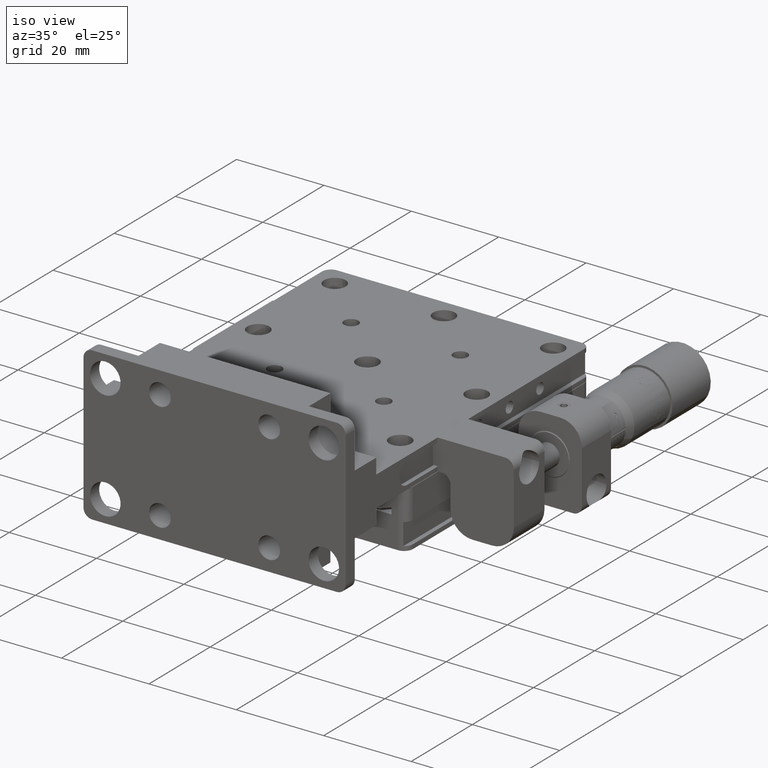
[diagram: clean part render]
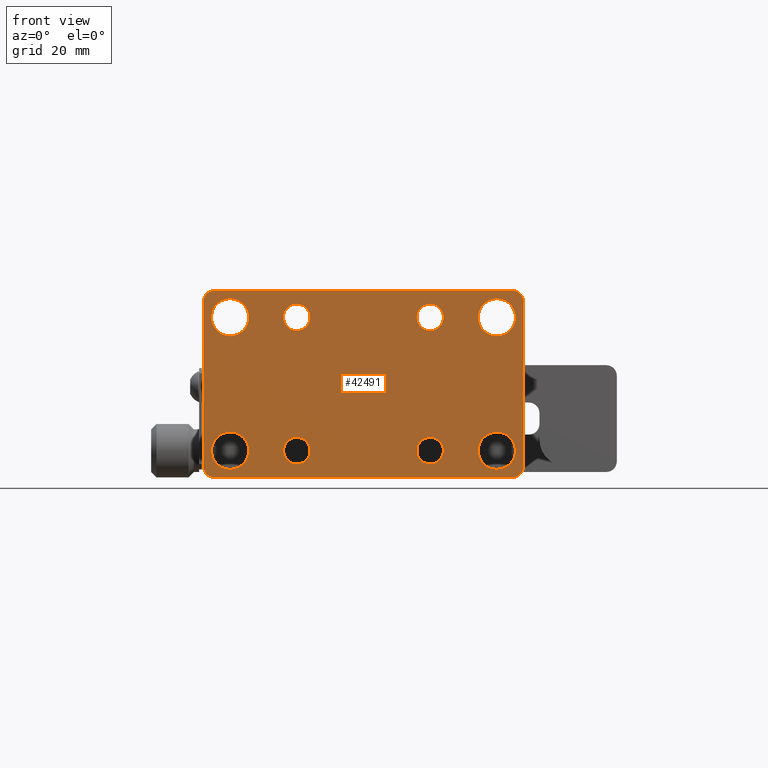
[diagram: tour spotlight — one face highlighted and labeled with its STEP entity id]
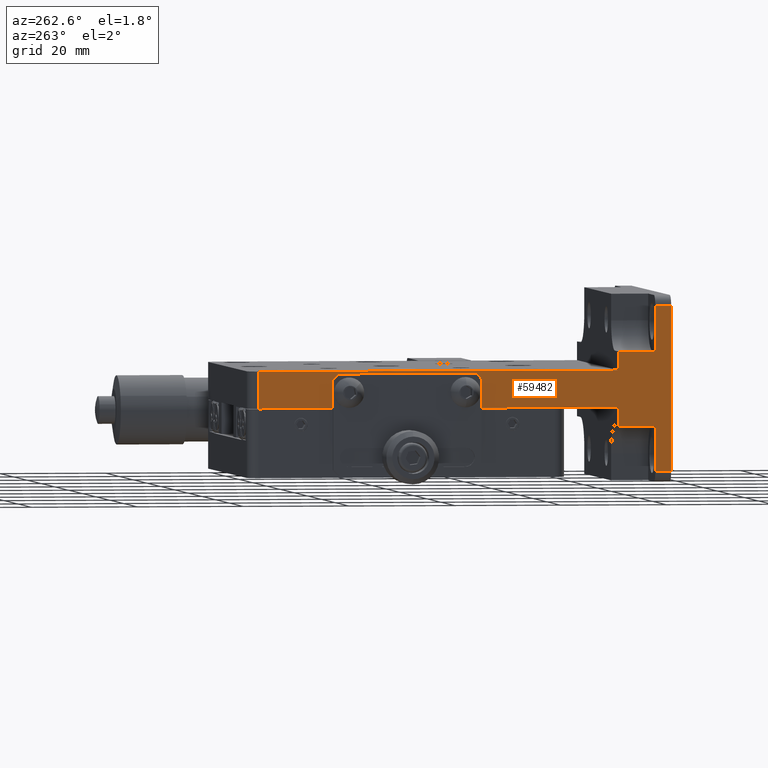
[diagram: tour spotlight — one face highlighted and labeled with its STEP entity id]
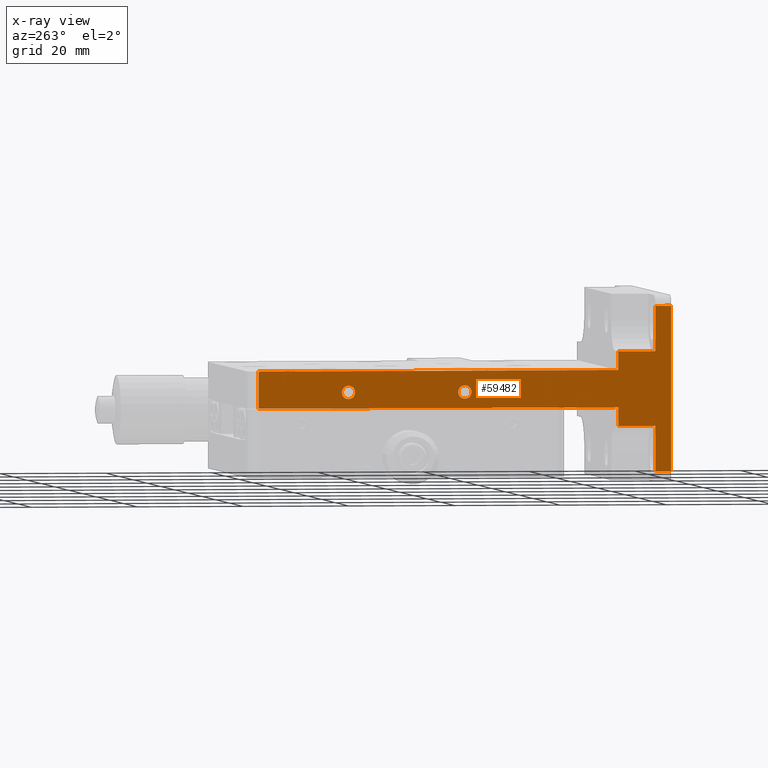
[diagram: x-ray of the same camera — body ghosted, this tour face saturated]
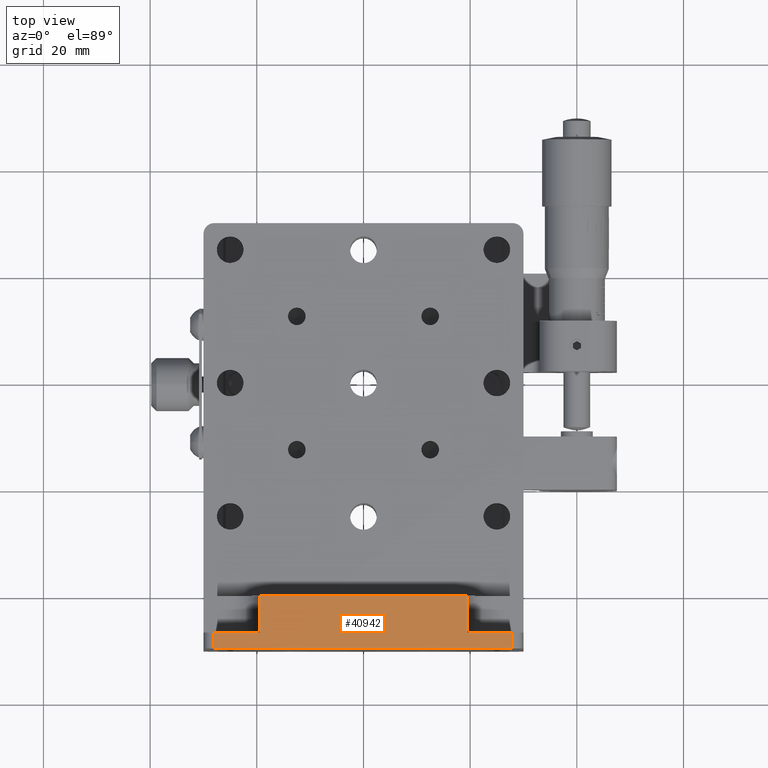
[diagram: tour spotlight — one face highlighted and labeled with its STEP entity id]
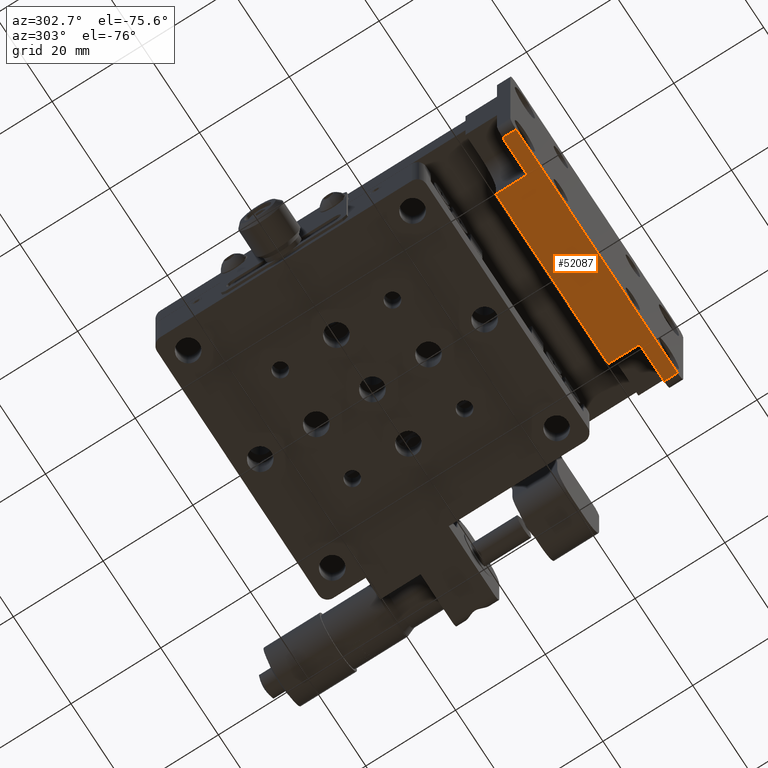
[diagram: tour spotlight — one face highlighted and labeled with its STEP entity id]
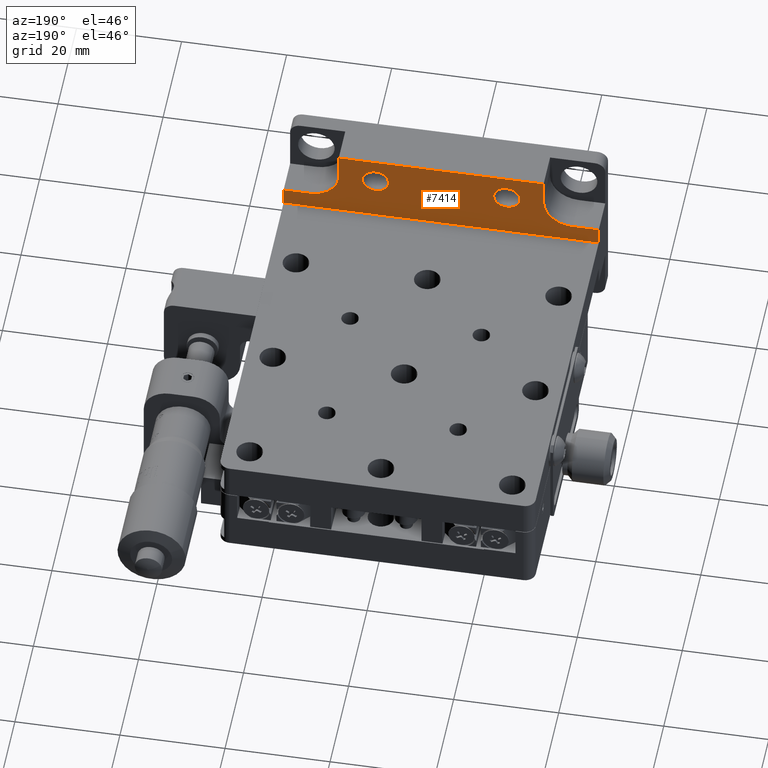
[diagram: tour spotlight — one face highlighted and labeled with its STEP entity id]
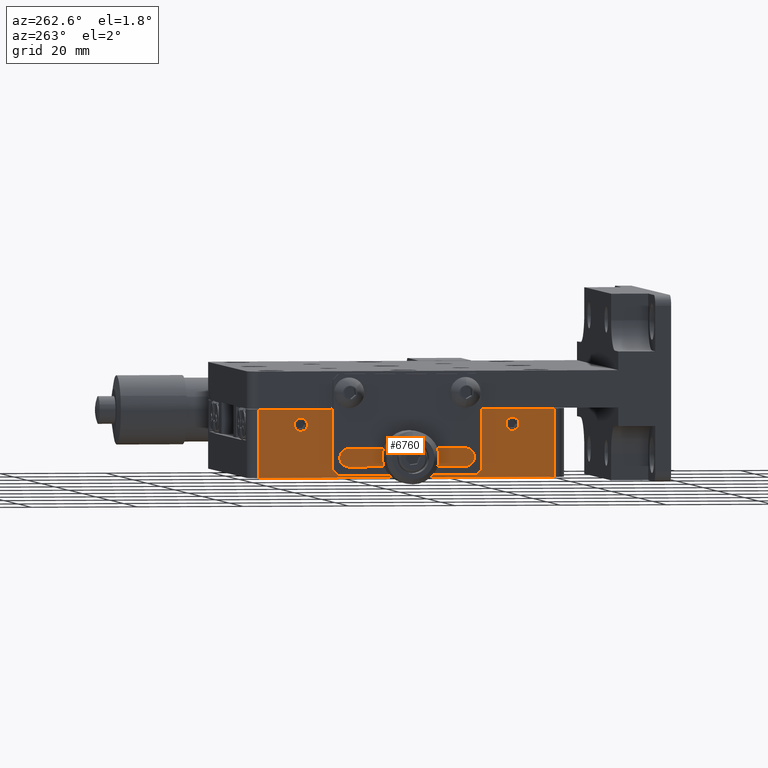
[diagram: tour spotlight — one face highlighted and labeled with its STEP entity id]
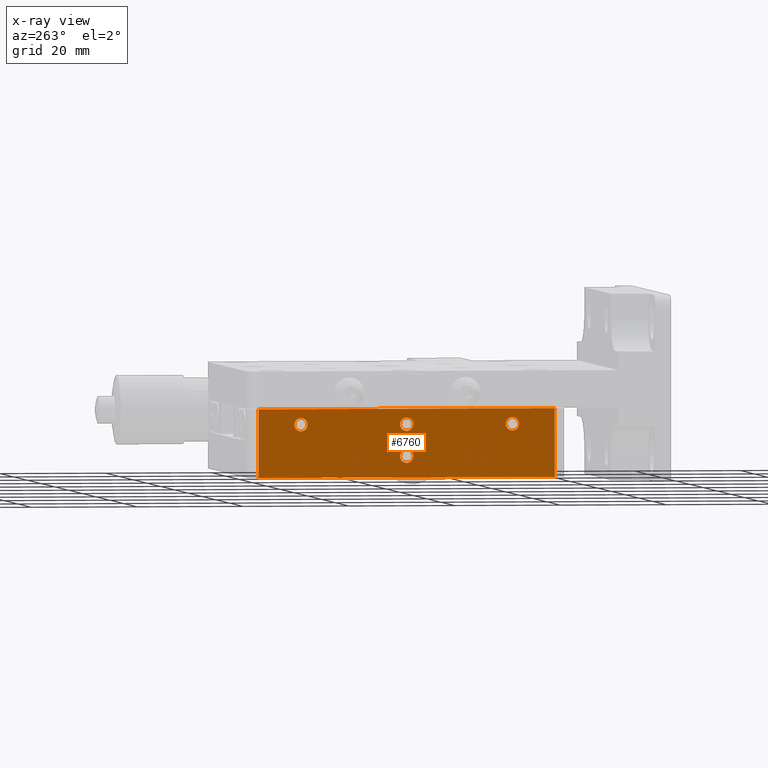
[diagram: x-ray of the same camera — body ghosted, this tour face saturated]
A machine part: a face-by-face anatomy tour. The part has 1652 B-rep faces; the first image is the clean iso view, then the 6 largest visible faces are spotlighted one at a time (largest first), each with its STEP entity span.

Face 1 — front view, entity #42491. In plain terms, the highlighted planar face has unit normal (0, -1, 0).
Definition (entity closure, byte-faithful):
#249 = ORIENTED_EDGE ( 'NONE', *, *, #34249, .T. ) ;
#298 = FACE_BOUND ( 'NONE', #2004, .T. ) ;
#780 = CARTESIAN_POINT ( 'NONE',  ( -25.00000000000003900, -9.999999999999868500, 12.49999999999992700 ) ) ;
#831 = EDGE_LOOP ( 'NONE', ( #45327, #10009 ) ) ;
#959 = CIRCLE ( 'NONE', #19325, 3.499999999999994200 ) ;
#1154 = VERTEX_POINT ( 'NONE', #27097 ) ;
#1191 = VERTEX_POINT ( 'NONE', #13748 ) ;
#1492 = CARTESIAN_POINT ( 'NONE',  ( 30.00000000000001100, -9.999999999999865000, 15.49999999999987700 ) ) ;
#1515 = CIRCLE ( 'NONE', #20496, 3.499999999999994200 ) ;
#1534 = EDGE_CURVE ( 'NONE', #37481, #8905, #17525, .T. ) ;
#1740 = DIRECTION ( 'NONE',  ( 0.0000000000000000000, 9.540979117872439000E-015, 1.000000000000000000 ) ) ;
#1890 = CARTESIAN_POINT ( 'NONE',  ( -24.99999999999995000, -10.00000000000013100, -12.50000000000006800 ) ) ;
#1899 = EDGE_CURVE ( 'NONE', #49676, #25054, #31054, .T. ) ;
#2004 = EDGE_LOOP ( 'NONE', ( #43699, #26919 ) ) ;
#2048 = VERTEX_POINT ( 'NONE', #42389 ) ;
#2463 = VERTEX_POINT ( 'NONE', #15308 ) ;
#2824 = CARTESIAN_POINT ( 'NONE',  ( 12.50000000000005500, -9.999999999999868500, 12.49999999999990100 ) ) ;
#2882 = DIRECTION ( 'NONE',  ( -1.000000000000000000, 7.494005416227462500E-016, 8.926753287369717600E-016 ) ) ;
#2983 = CARTESIAN_POINT ( 'NONE',  ( -12.50000000000001800, -10.00000000000015100, -10.00000000000010100 ) ) ;
#3184 = VERTEX_POINT ( 'NONE', #26408 ) ;
#3253 = CARTESIAN_POINT ( 'NONE',  ( 12.50000000000004600, -10.00000000000015100, -10.00000000000008500 ) ) ;
#3353 = CIRCLE ( 'NONE', #19927, 2.000000000000000000 ) ;
#3490 = AXIS2_PLACEMENT_3D ( 'NONE', #40985, #45671, #17659 ) ;
#3833 = AXIS2_PLACEMENT_3D ( 'NONE', #32167, #41771, #8231 ) ;
#4048 = ORIENTED_EDGE ( 'NONE', *, *, #49717, .T. ) ;
#4330 = VERTEX_POINT ( 'NONE', #15767 ) ;
#4558 = AXIS2_PLACEMENT_3D ( 'NONE', #12789, #54474, #7887 ) ;
#4655 = VERTEX_POINT ( 'NONE', #16934 ) ;
#6226 = CARTESIAN_POINT ( 'NONE',  ( 28.00000000000000700, -9.999999999999838400, 17.50000000000000000 ) ) ;
#6606 = ORIENTED_EDGE ( 'NONE', *, *, #22873, .T. ) ;
#7269 = DIRECTION ( 'NONE',  ( -7.633942006392911000E-016, 9.804398286584535200E-015, 1.000000000000000000 ) ) ;
#7352 = AXIS2_PLACEMENT_3D ( 'NONE', #50540, #55825, #51320 ) ;
#7555 = CIRCLE ( 'NONE', #43151, 2.000000000000000000 ) ;
#7580 = CARTESIAN_POINT ( 'NONE',  ( -28.00000000000004600, -9.999999999999815300, 17.50000000000004600 ) ) ;
#7887 = DIRECTION ( 'NONE',  ( 6.938893903907202700E-016, -9.714451465470083400E-015, -1.000000000000000000 ) ) ;
#7927 = CARTESIAN_POINT ( 'NONE',  ( 30.00000000000009900, -10.00000000000018700, -17.50000000000010700 ) ) ;
#7966 = DIRECTION ( 'NONE',  ( -7.494005416227522700E-016, 1.000000000000000000, 7.407882006856690300E-015 ) ) ;
#8231 = DIRECTION ( 'NONE',  ( 6.938893903907202700E-016, -9.714451465470083400E-015, -1.000000000000000000 ) ) ;
#8487 = CARTESIAN_POINT ( 'NONE',  ( 12.50000000000005500, -9.999999999999868500, 12.49999999999990100 ) ) ;
#8518 = PLANE ( 'NONE',  #22691 ) ;
#8784 = VERTEX_POINT ( 'NONE', #6226 ) ;
#8905 = VERTEX_POINT ( 'NONE', #53643 ) ;
#8934 = EDGE_CURVE ( 'NONE', #3184, #55277, #56303, .T. ) ;
#9746 = DIRECTION ( 'NONE',  ( 6.938893903907202700E-016, -9.714451465470083400E-015, -1.000000000000000000 ) ) ;
#10009 = ORIENTED_EDGE ( 'NONE', *, *, #55580, .T. ) ;
#10457 = CARTESIAN_POINT ( 'NONE',  ( 12.50000000000005000, -9.999999999999888100, 14.99999999999989500 ) ) ;
#10795 = EDGE_LOOP ( 'NONE', ( #33821, #21081 ) ) ;
#10848 = DIRECTION ( 'NONE',  ( 0.0000000000000000000, 9.540979117872446900E-015, 1.000000000000000000 ) ) ;
#10975 = LINE ( 'NONE', #25257, #56296 ) ;
#11650 = CARTESIAN_POINT ( 'NONE',  ( 28.00000000000000700, -9.999999999999865000, 15.49999999999987900 ) ) ;
#12107 = FACE_BOUND ( 'NONE', #33980, .T. ) ;
#12505 = CARTESIAN_POINT ( 'NONE',  ( -30.00000000000004300, -9.999999999999815300, 17.50000000000004600 ) ) ;
#12514 = EDGE_CURVE ( 'NONE', #55277, #3184, #13170, .T. ) ;
#12614 = DIRECTION ( 'NONE',  ( -7.633942006392911000E-016, 9.804398286584535200E-015, 1.000000000000000000 ) ) ;
#12789 = CARTESIAN_POINT ( 'NONE',  ( 12.50000000000005200, -10.00000000000013100, -12.50000000000009400 ) ) ;
#12906 = CARTESIAN_POINT ( 'NONE',  ( 25.00000000000006800, -10.00000000000013100, -12.50000000000009600 ) ) ;
#13170 = CIRCLE ( 'NONE', #21300, 3.500000000000006700 ) ;
#13267 = DIRECTION ( 'NONE',  ( 9.912705577010342300E-016, -9.912705577010342700E-015, -1.000000000000000000 ) ) ;
#13279 = AXIS2_PLACEMENT_3D ( 'NONE', #14667, #56759, #9746 ) ;
#13748 = CARTESIAN_POINT ( 'NONE',  ( 24.99999999999994700, -9.999999999999895200, 15.99999999999992000 ) ) ;
#14504 = AXIS2_PLACEMENT_3D ( 'NONE', #24006, #46867, #57060 ) ;
#14667 = CARTESIAN_POINT ( 'NONE',  ( 12.50000000000005200, -10.00000000000013100, -12.50000000000009400 ) ) ;
#15308 = CARTESIAN_POINT ( 'NONE',  ( -30.00000000000004300, -9.999999999999840100, 15.49999999999995600 ) ) ;
#15321 = DIRECTION ( 'NONE',  ( 7.494005416227522700E-016, -1.000000000000000000, -7.407882006856690300E-015 ) ) ;
#15420 = ORIENTED_EDGE ( 'NONE', *, *, #48465, .T. ) ;
#15537 = CARTESIAN_POINT ( 'NONE',  ( -12.50000000000001400, -9.999999999999888100, 14.99999999999992200 ) ) ;
#15767 = CARTESIAN_POINT ( 'NONE',  ( 30.00000000000009900, -10.00000000000016000, -15.50000000000013700 ) ) ;
#15807 = ORIENTED_EDGE ( 'NONE', *, *, #46742, .T. ) ;
#15828 = ORIENTED_EDGE ( 'NONE', *, *, #30725, .T. ) ;
#16499 = ORIENTED_EDGE ( 'NONE', *, *, #19896, .T. ) ;
#16562 = ORIENTED_EDGE ( 'NONE', *, *, #12514, .T. ) ;
#16934 = CARTESIAN_POINT ( 'NONE',  ( 24.99999999999995400, -9.999999999999902300, 8.999999999999932500 ) ) ;
#17315 = CIRCLE ( 'NONE', #25345, 3.499999999999994200 ) ;
#17525 = CIRCLE ( 'NONE', #32323, 2.499999999999995100 ) ;
#17659 = DIRECTION ( 'NONE',  ( 0.0000000000000000000, 9.540979117872439000E-015, 1.000000000000000000 ) ) ;
#17903 = VERTEX_POINT ( 'NONE', #56778 ) ;
#18277 = CARTESIAN_POINT ( 'NONE',  ( -12.50000000000000900, -9.999999999999868500, 12.49999999999992500 ) ) ;
#18290 = CARTESIAN_POINT ( 'NONE',  ( -29.99999999999995400, -10.00000000000016200, -17.50000000000006000 ) ) ;
#18863 = ORIENTED_EDGE ( 'NONE', *, *, #48563, .T. ) ;
#18950 = CIRCLE ( 'NONE', #58481, 3.499999999999994200 ) ;
#19027 = LINE ( 'NONE', #12505, #32213 ) ;
#19325 = AXIS2_PLACEMENT_3D ( 'NONE', #51961, #57280, #19720 ) ;
#19470 = CARTESIAN_POINT ( 'NONE',  ( 12.50000000000005300, -10.00000000000015600, -15.00000000000010300 ) ) ;
#19720 = DIRECTION ( 'NONE',  ( 9.912705577010342300E-016, -9.912705577010342700E-015, -1.000000000000000000 ) ) ;
#19896 = EDGE_CURVE ( 'NONE', #17903, #21828, #33573, .T. ) ;
#19927 = AXIS2_PLACEMENT_3D ( 'NONE', #43323, #15321, #1740 ) ;
#20496 = AXIS2_PLACEMENT_3D ( 'NONE', #35988, #7966, #13267 ) ;
#20763 = EDGE_CURVE ( 'NONE', #39787, #1154, #47388, .T. ) ;
#20928 = EDGE_CURVE ( 'NONE', #59791, #48656, #32037, .T. ) ;
#20933 = DIRECTION ( 'NONE',  ( 7.494005416227522700E-016, -1.000000000000000000, -7.407882006856690300E-015 ) ) ;
#21073 = ORIENTED_EDGE ( 'NONE', *, *, #30090, .T. ) ;
#21081 = ORIENTED_EDGE ( 'NONE', *, *, #51974, .T. ) ;
#21300 = AXIS2_PLACEMENT_3D ( 'NONE', #35658, #26280, #21380 ) ;
#21380 = DIRECTION ( 'NONE',  ( 9.912705577010306800E-016, -9.912705577010308000E-015, -1.000000000000000000 ) ) ;
#21521 = LINE ( 'NONE', #48792, #41204 ) ;
#21828 = VERTEX_POINT ( 'NONE', #2983 ) ;
#22473 = ORIENTED_EDGE ( 'NONE', *, *, #20928, .T. ) ;
#22660 = ORIENTED_EDGE ( 'NONE', *, *, #8934, .T. ) ;
#22675 = DIRECTION ( 'NONE',  ( -7.494005416227522700E-016, 1.000000000000000000, 7.407882006856690300E-015 ) ) ;
#22691 = AXIS2_PLACEMENT_3D ( 'NONE', #7927, #45562, #12614 ) ;
#22873 = EDGE_CURVE ( 'NONE', #25054, #49676, #47271, .T. ) ;
#23068 = CARTESIAN_POINT ( 'NONE',  ( -25.00000000000004300, -9.999999999999895200, 15.99999999999992400 ) ) ;
#23816 = FACE_BOUND ( 'NONE', #48587, .T. ) ;
#24006 = CARTESIAN_POINT ( 'NONE',  ( -12.50000000000000900, -9.999999999999868500, 12.49999999999992500 ) ) ;
#24828 = DIRECTION ( 'NONE',  ( 9.912705577010342300E-016, -9.912705577010342700E-015, -1.000000000000000000 ) ) ;
#25054 = VERTEX_POINT ( 'NONE', #47486 ) ;
#25257 = CARTESIAN_POINT ( 'NONE',  ( -29.99999999999995400, -10.00000000000016200, -17.50000000000006000 ) ) ;
#25345 = AXIS2_PLACEMENT_3D ( 'NONE', #27836, #51296, #51697 ) ;
#26280 = DIRECTION ( 'NONE',  ( -7.494005416227522700E-016, 1.000000000000000000, 7.407882006856690300E-015 ) ) ;
#26408 = CARTESIAN_POINT ( 'NONE',  ( -24.99999999999995400, -10.00000000000015800, -9.000000000000058600 ) ) ;
#26508 = EDGE_LOOP ( 'NONE', ( #22473, #15807 ) ) ;
#26665 = DIRECTION ( 'NONE',  ( 7.633942006392911000E-016, -9.804398286584535200E-015, -1.000000000000000000 ) ) ;
#26919 = ORIENTED_EDGE ( 'NONE', *, *, #1534, .T. ) ;
#27009 = VERTEX_POINT ( 'NONE', #3253 ) ;
#27083 = EDGE_CURVE ( 'NONE', #8905, #37481, #55656, .T. ) ;
#27097 = CARTESIAN_POINT ( 'NONE',  ( 28.00000000000009900, -10.00000000000018700, -17.50000000000010700 ) ) ;
#27285 = DIRECTION ( 'NONE',  ( 9.912705577010302900E-016, -9.912705577010301700E-015, -1.000000000000000000 ) ) ;
#27413 = CIRCLE ( 'NONE', #4558, 2.500000000000009300 ) ;
#27836 = CARTESIAN_POINT ( 'NONE',  ( 24.99999999999995000, -9.999999999999868500, 12.49999999999992500 ) ) ;
#27996 = VERTEX_POINT ( 'NONE', #40365 ) ;
#28445 = ORIENTED_EDGE ( 'NONE', *, *, #20763, .T. ) ;
#29196 = CIRCLE ( 'NONE', #45640, 1.999999999999998200 ) ;
#29857 = CIRCLE ( 'NONE', #13279, 2.500000000000009300 ) ;
#29870 = VECTOR ( 'NONE', #50562, 1000.000000000000000 ) ;
#30009 = AXIS2_PLACEMENT_3D ( 'NONE', #18277, #51334, #60510 ) ;
#30090 = EDGE_CURVE ( 'NONE', #27996, #39787, #3353, .T. ) ;
#30296 = CARTESIAN_POINT ( 'NONE',  ( 28.00000000000009900, -10.00000000000016000, -15.50000000000013700 ) ) ;
#30543 = VERTEX_POINT ( 'NONE', #23068 ) ;
#30725 = EDGE_CURVE ( 'NONE', #21828, #17903, #36249, .T. ) ;
#31054 = CIRCLE ( 'NONE', #30009, 2.499999999999995100 ) ;
#31626 = CIRCLE ( 'NONE', #52493, 3.500000000000008400 ) ;
#31768 = DIRECTION ( 'NONE',  ( -7.494005416227522700E-016, 1.000000000000000000, 7.407882006856690300E-015 ) ) ;
#31794 = EDGE_CURVE ( 'NONE', #33567, #2463, #52150, .T. ) ;
#31943 = CARTESIAN_POINT ( 'NONE',  ( -27.99999999999995400, -10.00000000000016200, -17.50000000000006000 ) ) ;
#32037 = CIRCLE ( 'NONE', #44654, 3.500000000000008400 ) ;
#32070 = VERTEX_POINT ( 'NONE', #1492 ) ;
#32167 = CARTESIAN_POINT ( 'NONE',  ( -12.50000000000001200, -10.00000000000013100, -12.50000000000011000 ) ) ;
#32213 = VECTOR ( 'NONE', #2882, 1000.000000000000000 ) ;
#32323 = AXIS2_PLACEMENT_3D ( 'NONE', #8487, #22675, #36713 ) ;
#32718 = ORIENTED_EDGE ( 'NONE', *, *, #46198, .T. ) ;
#32894 = EDGE_CURVE ( 'NONE', #4330, #32070, #21521, .T. ) ;
#33567 = VERTEX_POINT ( 'NONE', #7580 ) ;
#33573 = CIRCLE ( 'NONE', #7352, 2.500000000000009300 ) ;
#33821 = ORIENTED_EDGE ( 'NONE', *, *, #59396, .T. ) ;
#33980 = EDGE_LOOP ( 'NONE', ( #6606, #35750 ) ) ;
#34249 = EDGE_CURVE ( 'NONE', #2048, #30543, #1515, .T. ) ;
#34376 = DIRECTION ( 'NONE',  ( 7.494005416227522700E-016, -1.000000000000000000, -7.407882006856690300E-015 ) ) ;
#34789 = CARTESIAN_POINT ( 'NONE',  ( -24.99999999999994700, -10.00000000000016700, -16.00000000000007500 ) ) ;
#34890 = DIRECTION ( 'NONE',  ( 9.912705577010306800E-016, -9.912705577010308000E-015, -1.000000000000000000 ) ) ;
#35018 = DIRECTION ( 'NONE',  ( 0.0000000000000000000, 9.540979117872439000E-015, 1.000000000000000000 ) ) ;
#35246 = AXIS2_PLACEMENT_3D ( 'NONE', #1890, #53847, #34890 ) ;
#35540 = FACE_OUTER_BOUND ( 'NONE', #55574, .T. ) ;
#35658 = CARTESIAN_POINT ( 'NONE',  ( -24.99999999999995000, -10.00000000000013100, -12.50000000000006800 ) ) ;
#35750 = ORIENTED_EDGE ( 'NONE', *, *, #1899, .T. ) ;
#35988 = CARTESIAN_POINT ( 'NONE',  ( -25.00000000000003900, -9.999999999999868500, 12.49999999999992700 ) ) ;
#36249 = CIRCLE ( 'NONE', #3833, 2.500000000000009300 ) ;
#36713 = DIRECTION ( 'NONE',  ( 6.938893903907242200E-016, -9.714451465470138700E-015, -1.000000000000000000 ) ) ;
#36979 = FACE_BOUND ( 'NONE', #54067, .T. ) ;
#37481 = VERTEX_POINT ( 'NONE', #10457 ) ;
#39787 = VERTEX_POINT ( 'NONE', #31943 ) ;
#39965 = EDGE_CURVE ( 'NONE', #32070, #8784, #29196, .T. ) ;
#40099 = ORIENTED_EDGE ( 'NONE', *, *, #32894, .T. ) ;
#40365 = CARTESIAN_POINT ( 'NONE',  ( -29.99999999999995400, -10.00000000000013500, -15.50000000000006000 ) ) ;
#40985 = CARTESIAN_POINT ( 'NONE',  ( -28.00000000000004600, -9.999999999999840100, 15.49999999999995700 ) ) ;
#40995 = AXIS2_PLACEMENT_3D ( 'NONE', #2824, #49472, #53524 ) ;
#41204 = VECTOR ( 'NONE', #7269, 1000.000000000000000 ) ;
#41771 = DIRECTION ( 'NONE',  ( -7.494005416227522700E-016, 1.000000000000000000, 7.407882006856690300E-015 ) ) ;
#42389 = CARTESIAN_POINT ( 'NONE',  ( -25.00000000000003600, -9.999999999999902300, 8.999999999999934300 ) ) ;
#42491 = ADVANCED_FACE ( 'NONE', ( #50870, #36979, #298, #12107, #60326, #51564, #47958, #23816, #35540 ), #8518, .T. ) ;
#43151 = AXIS2_PLACEMENT_3D ( 'NONE', #30296, #20933, #35018 ) ;
#43323 = CARTESIAN_POINT ( 'NONE',  ( -27.99999999999995400, -10.00000000000013500, -15.50000000000006000 ) ) ;
#43699 = ORIENTED_EDGE ( 'NONE', *, *, #27083, .T. ) ;
#44654 = AXIS2_PLACEMENT_3D ( 'NONE', #12906, #54804, #49909 ) ;
#45327 = ORIENTED_EDGE ( 'NONE', *, *, #53732, .T. ) ;
#45562 = DIRECTION ( 'NONE',  ( 7.494005416227391500E-016, -1.000000000000000000, 9.804398286584535200E-015 ) ) ;
#45640 = AXIS2_PLACEMENT_3D ( 'NONE', #11650, #34376, #10848 ) ;
#45671 = DIRECTION ( 'NONE',  ( 7.494005416227522700E-016, -1.000000000000000000, -7.407882006856690300E-015 ) ) ;
#46198 = EDGE_CURVE ( 'NONE', #1154, #4330, #7555, .T. ) ;
#46742 = EDGE_CURVE ( 'NONE', #48656, #59791, #31626, .T. ) ;
#46867 = DIRECTION ( 'NONE',  ( -7.494005416227522700E-016, 1.000000000000000000, 7.407882006856690300E-015 ) ) ;
#47271 = CIRCLE ( 'NONE', #14504, 2.499999999999995100 ) ;
#47388 = LINE ( 'NONE', #18290, #29870 ) ;
#47486 = CARTESIAN_POINT ( 'NONE',  ( -12.50000000000000700, -9.999999999999893400, 9.999999999999930700 ) ) ;
#47958 = FACE_BOUND ( 'NONE', #56217, .T. ) ;
#48465 = EDGE_CURVE ( 'NONE', #2463, #27996, #10975, .T. ) ;
#48563 = EDGE_CURVE ( 'NONE', #8784, #33567, #19027, .T. ) ;
#48587 = EDGE_LOOP ( 'NONE', ( #16562, #22660 ) ) ;
#48656 = VERTEX_POINT ( 'NONE', #55203 ) ;
#48792 = CARTESIAN_POINT ( 'NONE',  ( 30.00000000000009900, -10.00000000000018700, -17.50000000000010700 ) ) ;
#49472 = DIRECTION ( 'NONE',  ( -7.494005416227522700E-016, 1.000000000000000000, 7.407882006856690300E-015 ) ) ;
#49676 = VERTEX_POINT ( 'NONE', #15537 ) ;
#49717 = EDGE_CURVE ( 'NONE', #30543, #2048, #18950, .T. ) ;
#49866 = ORIENTED_EDGE ( 'NONE', *, *, #31794, .T. ) ;
#49909 = DIRECTION ( 'NONE',  ( 9.912705577010302900E-016, -9.912705577010301700E-015, -1.000000000000000000 ) ) ;
#50540 = CARTESIAN_POINT ( 'NONE',  ( -12.50000000000001200, -10.00000000000013100, -12.50000000000011000 ) ) ;
#50562 = DIRECTION ( 'NONE',  ( 1.000000000000000000, -7.494005416227462500E-016, -8.926753287369717600E-016 ) ) ;
#50870 = FACE_BOUND ( 'NONE', #831, .T. ) ;
#51050 = CARTESIAN_POINT ( 'NONE',  ( 25.00000000000007100, -10.00000000000016700, -16.00000000000010300 ) ) ;
#51296 = DIRECTION ( 'NONE',  ( -7.494005416227522700E-016, 1.000000000000000000, 7.407882006856690300E-015 ) ) ;
#51320 = DIRECTION ( 'NONE',  ( 6.938893903907202700E-016, -9.714451465470083400E-015, -1.000000000000000000 ) ) ;
#51334 = DIRECTION ( 'NONE',  ( -7.494005416227522700E-016, 1.000000000000000000, 7.407882006856690300E-015 ) ) ;
#51564 = FACE_BOUND ( 'NONE', #26508, .T. ) ;
#51697 = DIRECTION ( 'NONE',  ( 9.912705577010342300E-016, -9.912705577010342700E-015, -1.000000000000000000 ) ) ;
#51961 = CARTESIAN_POINT ( 'NONE',  ( 24.99999999999995000, -9.999999999999868500, 12.49999999999992500 ) ) ;
#51974 = EDGE_CURVE ( 'NONE', #1191, #4655, #17315, .T. ) ;
#52150 = CIRCLE ( 'NONE', #3490, 2.000000000000000000 ) ;
#52493 = AXIS2_PLACEMENT_3D ( 'NONE', #59512, #31768, #27285 ) ;
#53524 = DIRECTION ( 'NONE',  ( 6.938893903907242200E-016, -9.714451465470138700E-015, -1.000000000000000000 ) ) ;
#53643 = CARTESIAN_POINT ( 'NONE',  ( 12.50000000000005700, -9.999999999999893400, 9.999999999999904100 ) ) ;
#53732 = EDGE_CURVE ( 'NONE', #55036, #27009, #27413, .T. ) ;
#53847 = DIRECTION ( 'NONE',  ( -7.494005416227522700E-016, 1.000000000000000000, 7.407882006856690300E-015 ) ) ;
#54067 = EDGE_LOOP ( 'NONE', ( #16499, #15828 ) ) ;
#54474 = DIRECTION ( 'NONE',  ( -7.494005416227522700E-016, 1.000000000000000000, 7.407882006856690300E-015 ) ) ;
#54804 = DIRECTION ( 'NONE',  ( -7.494005416227522700E-016, 1.000000000000000000, 7.407882006856690300E-015 ) ) ;
#55036 = VERTEX_POINT ( 'NONE', #19470 ) ;
#55203 = CARTESIAN_POINT ( 'NONE',  ( 25.00000000000006400, -10.00000000000015800, -9.000000000000087000 ) ) ;
#55277 = VERTEX_POINT ( 'NONE', #34789 ) ;
#55574 = EDGE_LOOP ( 'NONE', ( #40099, #60556, #18863, #49866, #15420, #21073, #28445, #32718 ) ) ;
#55580 = EDGE_CURVE ( 'NONE', #27009, #55036, #29857, .T. ) ;
#55656 = CIRCLE ( 'NONE', #40995, 2.499999999999995100 ) ;
#55825 = DIRECTION ( 'NONE',  ( -7.494005416227522700E-016, 1.000000000000000000, 7.407882006856690300E-015 ) ) ;
#56217 = EDGE_LOOP ( 'NONE', ( #249, #4048 ) ) ;
#56296 = VECTOR ( 'NONE', #26665, 1000.000000000000000 ) ;
#56303 = CIRCLE ( 'NONE', #35246, 3.500000000000006700 ) ;
#56759 = DIRECTION ( 'NONE',  ( -7.494005416227522700E-016, 1.000000000000000000, 7.407882006856690300E-015 ) ) ;
#56778 = CARTESIAN_POINT ( 'NONE',  ( -12.50000000000001100, -10.00000000000015600, -15.00000000000011900 ) ) ;
#57060 = DIRECTION ( 'NONE',  ( 6.938893903907242200E-016, -9.714451465470138700E-015, -1.000000000000000000 ) ) ;
#57066 = DIRECTION ( 'NONE',  ( -7.494005416227522700E-016, 1.000000000000000000, 7.407882006856690300E-015 ) ) ;
#57280 = DIRECTION ( 'NONE',  ( -7.494005416227522700E-016, 1.000000000000000000, 7.407882006856690300E-015 ) ) ;
#58481 = AXIS2_PLACEMENT_3D ( 'NONE', #780, #57066, #24828 ) ;
#59396 = EDGE_CURVE ( 'NONE', #4655, #1191, #959, .T. ) ;
#59512 = CARTESIAN_POINT ( 'NONE',  ( 25.00000000000006800, -10.00000000000013100, -12.50000000000009600 ) ) ;
#59791 = VERTEX_POINT ( 'NONE', #51050 ) ;
#60326 = FACE_BOUND ( 'NONE', #10795, .T. ) ;
#60510 = DIRECTION ( 'NONE',  ( 6.938893903907242200E-016, -9.714451465470138700E-015, -1.000000000000000000 ) ) ;
#60556 = ORIENTED_EDGE ( 'NONE', *, *, #39965, .T. ) ;

Face 2 — auxiliary view, entity #59482. An x-ray twin of the same camera follows (body ghosted, this face saturated) — the face is partly hidden behind the body. In plain terms, the highlighted planar face has unit normal (1, 0, -0).
Definition (entity closure, byte-faithful):
#483 = CARTESIAN_POINT ( 'NONE',  ( -30.00000000000009200, 67.99999999999981500, -6.499999999999487500 ) ) ;
#542 = VECTOR ( 'NONE', #16366, 1000.000000000000000 ) ;
#1128 = CARTESIAN_POINT ( 'NONE',  ( -30.00000000000009200, 68.00000000000000000, -3.499999999999494200 ) ) ;
#1352 = LINE ( 'NONE', #54759, #46760 ) ;
#1543 = DIRECTION ( 'NONE',  ( 7.494005416227522700E-016, -1.000000000000000000, -7.407882006856690300E-015 ) ) ;
#1858 = AXIS2_PLACEMENT_3D ( 'NONE', #15912, #57361, #24519 ) ;
#2227 = DIRECTION ( 'NONE',  ( 7.633942006392911000E-016, -9.804398286584535200E-015, -1.000000000000000000 ) ) ;
#2279 = EDGE_CURVE ( 'NONE', #48022, #12235, #31760, .T. ) ;
#2365 = ORIENTED_EDGE ( 'NONE', *, *, #2279, .T. ) ;
#2463 = VERTEX_POINT ( 'NONE', #15308 ) ;
#2946 = VECTOR ( 'NONE', #51314, 1000.000000000000000 ) ;
#4119 = VERTEX_POINT ( 'NONE', #26475 ) ;
#4504 = DIRECTION ( 'NONE',  ( 0.0000000000000000000, -1.000000000000000000, -7.372574772901505900E-015 ) ) ;
#4878 = ORIENTED_EDGE ( 'NONE', *, *, #45255, .T. ) ;
#5068 = VECTOR ( 'NONE', #37582, 1000.000000000000000 ) ;
#5268 = LINE ( 'NONE', #53476, #49941 ) ;
#5925 = CARTESIAN_POINT ( 'NONE',  ( -30.00000000000000000, 5.679741025172813500E-014, 3.500000000000016900 ) ) ;
#7192 = CARTESIAN_POINT ( 'NONE',  ( -30.00000000000000000, 29.00000000000000700, -0.4999999999997826200 ) ) ;
#8373 = ORIENTED_EDGE ( 'NONE', *, *, #37701, .F. ) ;
#8495 = ORIENTED_EDGE ( 'NONE', *, *, #55082, .T. ) ;
#8663 = VECTOR ( 'NONE', #1543, 1000.000000000000000 ) ;
#10287 = EDGE_CURVE ( 'NONE', #2463, #21765, #43426, .T. ) ;
#10421 = CARTESIAN_POINT ( 'NONE',  ( -30.00000000000000000, -7.000000000000043500, -7.000000000000029300 ) ) ;
#10975 = LINE ( 'NONE', #25257, #56296 ) ;
#11365 = EDGE_LOOP ( 'NONE', ( #21532, #50164, #17047, #44569, #30380, #4878, #2365, #32566, #36894, #8495, #20920, #15751 ) ) ;
#12129 = CARTESIAN_POINT ( 'NONE',  ( -30.00000000000000000, 52.24999999999999300, -0.4999999999996138100 ) ) ;
#12235 = VERTEX_POINT ( 'NONE', #5925 ) ;
#13076 = VECTOR ( 'NONE', #23786, 1000.000000000000000 ) ;
#13273 = LINE ( 'NONE', #483, #60033 ) ;
#14266 = CARTESIAN_POINT ( 'NONE',  ( -30.00000000000000000, 27.75000000000001800, -0.4999999999997918300 ) ) ;
#14460 = CIRCLE ( 'NONE', #1858, 1.249999999999987100 ) ;
#14787 = CARTESIAN_POINT ( 'NONE',  ( -30.00000000000000000, -6.999999999999910300, 6.999999999999983100 ) ) ;
#15308 = CARTESIAN_POINT ( 'NONE',  ( -30.00000000000004300, -9.999999999999840100, 15.49999999999995600 ) ) ;
#15375 = CARTESIAN_POINT ( 'NONE',  ( -30.00000000000000000, -1.183337775436374900E-014, -3.499999999999997800 ) ) ;
#15751 = ORIENTED_EDGE ( 'NONE', *, *, #19086, .F. ) ;
#15912 = CARTESIAN_POINT ( 'NONE',  ( -30.00000000000000000, 51.00000000000000700, -0.4999999999996201900 ) ) ;
#16331 = VERTEX_POINT ( 'NONE', #15375 ) ;
#16366 = DIRECTION ( 'NONE',  ( 7.633942006392911000E-016, -9.804398286584535200E-015, -1.000000000000000000 ) ) ;
#16391 = VECTOR ( 'NONE', #2227, 1000.000000000000000 ) ;
#17047 = ORIENTED_EDGE ( 'NONE', *, *, #48465, .F. ) ;
#17212 = DIRECTION ( 'NONE',  ( -1.000000000000000000, 7.494005416227474400E-016, 1.008323560468758800E-015 ) ) ;
#17629 = AXIS2_PLACEMENT_3D ( 'NONE', #18463, #32558, #4504 ) ;
#18264 = EDGE_CURVE ( 'NONE', #16331, #59118, #52698, .T. ) ;
#18463 = CARTESIAN_POINT ( 'NONE',  ( -30.00000000000000000, 51.00000000000000700, -0.4999999999996201900 ) ) ;
#19086 = EDGE_CURVE ( 'NONE', #43081, #59118, #40986, .T. ) ;
#19515 = DIRECTION ( 'NONE',  ( -7.494005416227522700E-016, 1.000000000000000000, 7.407882006856690300E-015 ) ) ;
#20041 = VECTOR ( 'NONE', #24439, 1000.000000000000000 ) ;
#20139 = DIRECTION ( 'NONE',  ( 1.000000000000000000, 7.494005416227597600E-016, -1.008323560468747600E-015 ) ) ;
#20920 = ORIENTED_EDGE ( 'NONE', *, *, #18264, .T. ) ;
#21490 = VERTEX_POINT ( 'NONE', #1128 ) ;
#21506 = CARTESIAN_POINT ( 'NONE',  ( -29.99999999999995400, -7.000000000000150100, -17.50000000000006400 ) ) ;
#21532 = ORIENTED_EDGE ( 'NONE', *, *, #40084, .T. ) ;
#21765 = VERTEX_POINT ( 'NONE', #54504 ) ;
#22848 = CARTESIAN_POINT ( 'NONE',  ( -30.00000000000000000, 30.25000000000000000, -0.4999999999997762300 ) ) ;
#22869 = DIRECTION ( 'NONE',  ( -1.000000000000000000, 7.494005416227474400E-016, 1.008323560468758800E-015 ) ) ;
#23364 = LINE ( 'NONE', #21506, #542 ) ;
#23786 = DIRECTION ( 'NONE',  ( 7.494005416227522700E-016, -1.000000000000000000, -7.407882006856690300E-015 ) ) ;
#24058 = CARTESIAN_POINT ( 'NONE',  ( -30.00000000000000000, -7.000000000000043500, -7.000000000000029300 ) ) ;
#24107 = LINE ( 'NONE', #53311, #8663 ) ;
#24439 = DIRECTION ( 'NONE',  ( -7.494005416227522700E-016, 1.000000000000000000, 7.407882006856690300E-015 ) ) ;
#24519 = DIRECTION ( 'NONE',  ( 0.0000000000000000000, -1.000000000000000000, -7.372574772901505900E-015 ) ) ;
#25257 = CARTESIAN_POINT ( 'NONE',  ( -29.99999999999995400, -10.00000000000016200, -17.50000000000006000 ) ) ;
#25553 = DIRECTION ( 'NONE',  ( -7.494005416227522700E-016, 1.000000000000000000, 7.407882006856690300E-015 ) ) ;
#25758 = EDGE_LOOP ( 'NONE', ( #55125, #8373 ) ) ;
#26475 = CARTESIAN_POINT ( 'NONE',  ( -30.00000000000009200, 68.00000000000000000, 3.500000000000519100 ) ) ;
#26665 = DIRECTION ( 'NONE',  ( 7.633942006392911000E-016, -9.804398286584535200E-015, -1.000000000000000000 ) ) ;
#26677 = FACE_BOUND ( 'NONE', #25758, .T. ) ;
#27017 = DIRECTION ( 'NONE',  ( 7.494005416227522700E-016, -1.000000000000000000, -7.407882006856690300E-015 ) ) ;
#27361 = CIRCLE ( 'NONE', #49295, 1.249999999999990700 ) ;
#27996 = VERTEX_POINT ( 'NONE', #40365 ) ;
#29185 = CARTESIAN_POINT ( 'NONE',  ( -29.99999999999995400, -7.000000000000124300, -15.50000000000003900 ) ) ;
#29224 = VERTEX_POINT ( 'NONE', #46291 ) ;
#30380 = ORIENTED_EDGE ( 'NONE', *, *, #35305, .T. ) ;
#31760 = LINE ( 'NONE', #44819, #16391 ) ;
#32558 = DIRECTION ( 'NONE',  ( -1.000000000000000000, 7.494005416227474400E-016, 1.008323560468758800E-015 ) ) ;
#32566 = ORIENTED_EDGE ( 'NONE', *, *, #49629, .F. ) ;
#33401 = PLANE ( 'NONE',  #55381 ) ;
#34173 = AXIS2_PLACEMENT_3D ( 'NONE', #7192, #17212, #49901 ) ;
#35305 = EDGE_CURVE ( 'NONE', #21765, #29224, #57800, .T. ) ;
#36128 = CARTESIAN_POINT ( 'NONE',  ( -30.00000000000000000, 29.00000000000000700, -0.4999999999997826200 ) ) ;
#36295 = CARTESIAN_POINT ( 'NONE',  ( -30.00000000000000000, -4.614877175740941700E-014, -6.999999999999979600 ) ) ;
#36441 = CARTESIAN_POINT ( 'NONE',  ( -29.99999999999995400, -7.000000000000150100, -17.50000000000006400 ) ) ;
#36548 = VERTEX_POINT ( 'NONE', #22848 ) ;
#36894 = ORIENTED_EDGE ( 'NONE', *, *, #38074, .F. ) ;
#37582 = DIRECTION ( 'NONE',  ( -7.494005416227522700E-016, 1.000000000000000000, 7.407882006856690300E-015 ) ) ;
#37701 = EDGE_CURVE ( 'NONE', #36548, #46516, #49192, .T. ) ;
#37766 = DIRECTION ( 'NONE',  ( -7.633942006392911000E-016, 9.804398286584535200E-015, 1.000000000000000000 ) ) ;
#38074 = EDGE_CURVE ( 'NONE', #21490, #4119, #13273, .T. ) ;
#38737 = CARTESIAN_POINT ( 'NONE',  ( -30.00000000000004300, -6.999999999999829500, 15.49999999999997700 ) ) ;
#40084 = EDGE_CURVE ( 'NONE', #43081, #47916, #23364, .T. ) ;
#40365 = CARTESIAN_POINT ( 'NONE',  ( -29.99999999999995400, -10.00000000000013500, -15.50000000000006000 ) ) ;
#40986 = LINE ( 'NONE', #10421, #5068 ) ;
#42164 = CARTESIAN_POINT ( 'NONE',  ( -30.00000000000009200, 70.00000000000000000, -3.499999999999478600 ) ) ;
#42707 = FACE_OUTER_BOUND ( 'NONE', #11365, .T. ) ;
#42896 = EDGE_LOOP ( 'NONE', ( #48026, #51828 ) ) ;
#43081 = VERTEX_POINT ( 'NONE', #24058 ) ;
#43426 = LINE ( 'NONE', #38737, #20041 ) ;
#44243 = VERTEX_POINT ( 'NONE', #12129 ) ;
#44483 = EDGE_CURVE ( 'NONE', #55691, #44243, #45683, .T. ) ;
#44569 = ORIENTED_EDGE ( 'NONE', *, *, #10287, .T. ) ;
#44819 = CARTESIAN_POINT ( 'NONE',  ( -30.00000000000000000, 9.111280425477419300E-014, 7.000000000000032900 ) ) ;
#45255 = EDGE_CURVE ( 'NONE', #29224, #48022, #5268, .T. ) ;
#45683 = CIRCLE ( 'NONE', #17629, 1.249999999999987100 ) ;
#46291 = CARTESIAN_POINT ( 'NONE',  ( -30.00000000000000000, -6.999999999999910300, 6.999999999999983100 ) ) ;
#46516 = VERTEX_POINT ( 'NONE', #14266 ) ;
#46760 = VECTOR ( 'NONE', #27017, 1000.000000000000000 ) ;
#47916 = VERTEX_POINT ( 'NONE', #29185 ) ;
#48022 = VERTEX_POINT ( 'NONE', #54066 ) ;
#48026 = ORIENTED_EDGE ( 'NONE', *, *, #44483, .F. ) ;
#48465 = EDGE_CURVE ( 'NONE', #2463, #27996, #10975, .T. ) ;
#48820 = CARTESIAN_POINT ( 'NONE',  ( -30.00000000000000000, 49.75000000000001400, -0.4999999999996294100 ) ) ;
#48926 = EDGE_CURVE ( 'NONE', #47916, #27996, #1352, .T. ) ;
#49192 = CIRCLE ( 'NONE', #34173, 1.249999999999990700 ) ;
#49295 = AXIS2_PLACEMENT_3D ( 'NONE', #36128, #22869, #59976 ) ;
#49629 = EDGE_CURVE ( 'NONE', #4119, #12235, #24107, .T. ) ;
#49901 = DIRECTION ( 'NONE',  ( 0.0000000000000000000, -1.000000000000000000, -7.372574772901485400E-015 ) ) ;
#49941 = VECTOR ( 'NONE', #25553, 1000.000000000000000 ) ;
#50164 = ORIENTED_EDGE ( 'NONE', *, *, #48926, .T. ) ;
#51314 = DIRECTION ( 'NONE',  ( 7.633942006392911000E-016, -9.804398286584535200E-015, -1.000000000000000000 ) ) ;
#51828 = ORIENTED_EDGE ( 'NONE', *, *, #55607, .F. ) ;
#52698 = LINE ( 'NONE', #55310, #57107 ) ;
#53311 = CARTESIAN_POINT ( 'NONE',  ( -30.00000000000009200, 70.00000000000000000, 3.500000000000541300 ) ) ;
#53476 = CARTESIAN_POINT ( 'NONE',  ( -30.00000000000000000, -6.999999999999910300, 6.999999999999983100 ) ) ;
#54066 = CARTESIAN_POINT ( 'NONE',  ( -30.00000000000000000, 9.111280425477419300E-014, 7.000000000000032900 ) ) ;
#54429 = EDGE_CURVE ( 'NONE', #46516, #36548, #27361, .T. ) ;
#54504 = CARTESIAN_POINT ( 'NONE',  ( -30.00000000000004300, -6.999999999999829500, 15.49999999999997500 ) ) ;
#54759 = CARTESIAN_POINT ( 'NONE',  ( -29.99999999999995400, -7.000000000000124300, -15.50000000000003700 ) ) ;
#55082 = EDGE_CURVE ( 'NONE', #21490, #16331, #56920, .T. ) ;
#55117 = FACE_BOUND ( 'NONE', #42896, .T. ) ;
#55125 = ORIENTED_EDGE ( 'NONE', *, *, #54429, .F. ) ;
#55310 = CARTESIAN_POINT ( 'NONE',  ( -30.00000000000000000, 9.111280425477419300E-014, 7.000000000000032900 ) ) ;
#55381 = AXIS2_PLACEMENT_3D ( 'NONE', #14787, #20139, #19515 ) ;
#55607 = EDGE_CURVE ( 'NONE', #44243, #55691, #14460, .T. ) ;
#55691 = VERTEX_POINT ( 'NONE', #48820 ) ;
#56296 = VECTOR ( 'NONE', #26665, 1000.000000000000000 ) ;
#56920 = LINE ( 'NONE', #42164, #13076 ) ;
#57107 = VECTOR ( 'NONE', #60165, 1000.000000000000000 ) ;
#57361 = DIRECTION ( 'NONE',  ( -1.000000000000000000, 7.494005416227474400E-016, 1.008323560468758800E-015 ) ) ;
#57800 = LINE ( 'NONE', #36441, #2946 ) ;
#59118 = VERTEX_POINT ( 'NONE', #36295 ) ;
#59482 = ADVANCED_FACE ( 'NONE', ( #26677, #55117, #42707 ), #33401, .F. ) ;
#59976 = DIRECTION ( 'NONE',  ( 0.0000000000000000000, -1.000000000000000000, -7.372574772901485400E-015 ) ) ;
#60033 = VECTOR ( 'NONE', #37766, 1000.000000000000000 ) ;
#60165 = DIRECTION ( 'NONE',  ( 7.633942006392911000E-016, -9.804398286584535200E-015, -1.000000000000000000 ) ) ;

Face 3 — top view, entity #40942. In plain terms, the highlighted planar face has unit normal (0, 0, -1).
Definition (entity closure, byte-faithful):
#1150 = CARTESIAN_POINT ( 'NONE',  ( 19.49999999999994300, -6.999999999999849900, 17.49999999999990100 ) ) ;
#1385 = EDGE_CURVE ( 'NONE', #58941, #33567, #41680, .T. ) ;
#1589 = CARTESIAN_POINT ( 'NONE',  ( -28.00000000000004600, -6.999999999999802800, 17.49999999999995400 ) ) ;
#2882 = DIRECTION ( 'NONE',  ( -1.000000000000000000, 7.494005416227462500E-016, 8.926753287369717600E-016 ) ) ;
#2947 = ORIENTED_EDGE ( 'NONE', *, *, #48563, .F. ) ;
#4918 = ORIENTED_EDGE ( 'NONE', *, *, #50045, .T. ) ;
#5066 = DIRECTION ( 'NONE',  ( -1.000000000000000000, 7.494005416227474400E-016, 1.008323560468758800E-015 ) ) ;
#6226 = CARTESIAN_POINT ( 'NONE',  ( 28.00000000000000700, -9.999999999999838400, 17.50000000000000000 ) ) ;
#6834 = CARTESIAN_POINT ( 'NONE',  ( 28.00000000000000700, -6.999999999999849900, 17.50000000000004300 ) ) ;
#7580 = CARTESIAN_POINT ( 'NONE',  ( -28.00000000000004600, -9.999999999999815300, 17.50000000000004600 ) ) ;
#7888 = CARTESIAN_POINT ( 'NONE',  ( -19.50000000000003600, 1.861902805768726600E-013, 17.49999999999999300 ) ) ;
#8784 = VERTEX_POINT ( 'NONE', #6226 ) ;
#10505 = CARTESIAN_POINT ( 'NONE',  ( 19.49999999999994300, 1.569636594535858100E-013, 17.49999999999998600 ) ) ;
#10681 = CARTESIAN_POINT ( 'NONE',  ( -30.00000000000004300, -6.999999999999802800, 17.50000000000004300 ) ) ;
#11055 = DIRECTION ( 'NONE',  ( 7.494005416227522700E-016, -1.000000000000000000, -7.407882006856690300E-015 ) ) ;
#11559 = VERTEX_POINT ( 'NONE', #32216 ) ;
#12505 = CARTESIAN_POINT ( 'NONE',  ( -30.00000000000004300, -9.999999999999815300, 17.50000000000004600 ) ) ;
#14343 = LINE ( 'NONE', #42916, #59660 ) ;
#14882 = DIRECTION ( 'NONE',  ( -7.494005416227522700E-016, 1.000000000000000000, 7.407882006856690300E-015 ) ) ;
#16346 = LINE ( 'NONE', #23917, #36106 ) ;
#16709 = CARTESIAN_POINT ( 'NONE',  ( -28.00000000000004600, -6.999999999999802800, 17.50000000000004300 ) ) ;
#17957 = ORIENTED_EDGE ( 'NONE', *, *, #23969, .T. ) ;
#18398 = ORIENTED_EDGE ( 'NONE', *, *, #57761, .T. ) ;
#18787 = DIRECTION ( 'NONE',  ( -7.494005416227522700E-016, 1.000000000000000000, 7.407882006856690300E-015 ) ) ;
#19027 = LINE ( 'NONE', #12505, #32213 ) ;
#19211 = CARTESIAN_POINT ( 'NONE',  ( -19.50000000000003600, 1.861902805768726600E-013, 17.49999999999999300 ) ) ;
#20211 = VECTOR ( 'NONE', #22767, 1000.000000000000000 ) ;
#21849 = FACE_OUTER_BOUND ( 'NONE', #26881, .T. ) ;
#22549 = EDGE_CURVE ( 'NONE', #28283, #38561, #42191, .T. ) ;
#22767 = DIRECTION ( 'NONE',  ( -7.494005416227522700E-016, 1.000000000000000000, 7.407882006856690300E-015 ) ) ;
#23306 = ORIENTED_EDGE ( 'NONE', *, *, #45067, .F. ) ;
#23700 = VERTEX_POINT ( 'NONE', #6834 ) ;
#23917 = CARTESIAN_POINT ( 'NONE',  ( -19.50000000000003600, -6.999999999999815300, 17.49999999999995400 ) ) ;
#23969 = EDGE_CURVE ( 'NONE', #23700, #28283, #48655, .T. ) ;
#26881 = EDGE_LOOP ( 'NONE', ( #2947, #18398, #17957, #47338, #4918, #23306, #30528, #59065 ) ) ;
#28283 = VERTEX_POINT ( 'NONE', #1150 ) ;
#28330 = VECTOR ( 'NONE', #58867, 1000.000000000000000 ) ;
#30528 = ORIENTED_EDGE ( 'NONE', *, *, #51730, .T. ) ;
#32213 = VECTOR ( 'NONE', #2882, 1000.000000000000000 ) ;
#32216 = CARTESIAN_POINT ( 'NONE',  ( -19.50000000000003600, -6.999999999999815300, 17.49999999999995400 ) ) ;
#32969 = DIRECTION ( 'NONE',  ( 7.494005416227522700E-016, -1.000000000000000000, -7.407882006856690300E-015 ) ) ;
#33553 = LINE ( 'NONE', #19211, #40147 ) ;
#33567 = VERTEX_POINT ( 'NONE', #7580 ) ;
#34777 = VERTEX_POINT ( 'NONE', #7888 ) ;
#36106 = VECTOR ( 'NONE', #18787, 1000.000000000000000 ) ;
#37009 = AXIS2_PLACEMENT_3D ( 'NONE', #56645, #42588, #32969 ) ;
#37675 = PLANE ( 'NONE',  #37009 ) ;
#38561 = VERTEX_POINT ( 'NONE', #10505 ) ;
#40147 = VECTOR ( 'NONE', #5066, 1000.000000000000000 ) ;
#40795 = LINE ( 'NONE', #10681, #28330 ) ;
#40942 = ADVANCED_FACE ( 'NONE', ( #21849 ), #37675, .F. ) ;
#41132 = CARTESIAN_POINT ( 'NONE',  ( 19.49999999999994300, -6.999999999999849900, 17.49999999999990100 ) ) ;
#41326 = CARTESIAN_POINT ( 'NONE',  ( -30.00000000000004300, -6.999999999999802800, 17.50000000000004300 ) ) ;
#41680 = LINE ( 'NONE', #1589, #59922 ) ;
#42191 = LINE ( 'NONE', #41132, #20211 ) ;
#42588 = DIRECTION ( 'NONE',  ( 7.633942006392781800E-016, 7.407882006856690300E-015, -1.000000000000000000 ) ) ;
#42916 = CARTESIAN_POINT ( 'NONE',  ( 28.00000000000000700, -6.999999999999849900, 17.49999999999994700 ) ) ;
#45067 = EDGE_CURVE ( 'NONE', #11559, #34777, #16346, .T. ) ;
#47338 = ORIENTED_EDGE ( 'NONE', *, *, #22549, .T. ) ;
#48563 = EDGE_CURVE ( 'NONE', #8784, #33567, #19027, .T. ) ;
#48655 = LINE ( 'NONE', #41326, #60308 ) ;
#50045 = EDGE_CURVE ( 'NONE', #38561, #34777, #33553, .T. ) ;
#51730 = EDGE_CURVE ( 'NONE', #11559, #58941, #40795, .T. ) ;
#54784 = DIRECTION ( 'NONE',  ( -1.000000000000000000, 7.494005416227462500E-016, 8.926753287369717600E-016 ) ) ;
#56645 = CARTESIAN_POINT ( 'NONE',  ( -19.50000000000003600, -6.999999999999815300, 17.49999999999995400 ) ) ;
#57761 = EDGE_CURVE ( 'NONE', #8784, #23700, #14343, .T. ) ;
#58867 = DIRECTION ( 'NONE',  ( -1.000000000000000000, 7.494005416227462500E-016, 8.926753287369717600E-016 ) ) ;
#58941 = VERTEX_POINT ( 'NONE', #16709 ) ;
#59065 = ORIENTED_EDGE ( 'NONE', *, *, #1385, .T. ) ;
#59660 = VECTOR ( 'NONE', #14882, 1000.000000000000000 ) ;
#59922 = VECTOR ( 'NONE', #11055, 1000.000000000000000 ) ;
#60308 = VECTOR ( 'NONE', #54784, 1000.000000000000000 ) ;

Face 4 — auxiliary view, entity #52087. In plain terms, the highlighted planar face has unit normal (-0, -0, 1).
Definition (entity closure, byte-faithful):
#425 = CARTESIAN_POINT ( 'NONE',  ( -19.49999999999997200, -7.000000000000150100, -17.50000000000006400 ) ) ;
#988 = VERTEX_POINT ( 'NONE', #34656 ) ;
#1154 = VERTEX_POINT ( 'NONE', #27097 ) ;
#1484 = CARTESIAN_POINT ( 'NONE',  ( 19.50000000000006400, -7.000000000000184700, -17.50000000000011700 ) ) ;
#2718 = LINE ( 'NONE', #11327, #24732 ) ;
#3015 = VECTOR ( 'NONE', #42442, 1000.000000000000000 ) ;
#4862 = LINE ( 'NONE', #1484, #53151 ) ;
#5036 = ORIENTED_EDGE ( 'NONE', *, *, #36006, .T. ) ;
#8052 = VERTEX_POINT ( 'NONE', #54808 ) ;
#9179 = CARTESIAN_POINT ( 'NONE',  ( -19.49999999999997200, -7.000000000000150100, -17.50000000000006400 ) ) ;
#9587 = DIRECTION ( 'NONE',  ( -7.633942006392781800E-016, -7.407882006856690300E-015, 1.000000000000000000 ) ) ;
#10808 = ORIENTED_EDGE ( 'NONE', *, *, #41461, .F. ) ;
#10947 = ORIENTED_EDGE ( 'NONE', *, *, #55771, .T. ) ;
#11327 = CARTESIAN_POINT ( 'NONE',  ( -19.49999999999997200, -1.569636594535861800E-013, -17.50000000000002500 ) ) ;
#11657 = EDGE_CURVE ( 'NONE', #52052, #988, #14780, .T. ) ;
#13496 = ORIENTED_EDGE ( 'NONE', *, *, #60629, .T. ) ;
#13717 = PLANE ( 'NONE',  #18245 ) ;
#14588 = LINE ( 'NONE', #54008, #54051 ) ;
#14780 = LINE ( 'NONE', #425, #3015 ) ;
#15031 = DIRECTION ( 'NONE',  ( 1.000000000000000000, -7.494005416227474400E-016, -1.008323560468758800E-015 ) ) ;
#15853 = VECTOR ( 'NONE', #51659, 1000.000000000000000 ) ;
#16111 = VERTEX_POINT ( 'NONE', #46082 ) ;
#16283 = EDGE_LOOP ( 'NONE', ( #10947, #49958, #42253, #5036, #13496, #55146, #58070, #10808 ) ) ;
#18245 = AXIS2_PLACEMENT_3D ( 'NONE', #9179, #9587, #23372 ) ;
#18290 = CARTESIAN_POINT ( 'NONE',  ( -29.99999999999995400, -10.00000000000016200, -17.50000000000006000 ) ) ;
#20763 = EDGE_CURVE ( 'NONE', #39787, #1154, #47388, .T. ) ;
#21438 = DIRECTION ( 'NONE',  ( 1.000000000000000000, -7.494005416227462500E-016, -8.926753287369717600E-016 ) ) ;
#21863 = LINE ( 'NONE', #25935, #48875 ) ;
#23372 = DIRECTION ( 'NONE',  ( -7.494005416227522700E-016, 1.000000000000000000, 7.407882006856690300E-015 ) ) ;
#24732 = VECTOR ( 'NONE', #15031, 1000.000000000000000 ) ;
#25667 = DIRECTION ( 'NONE',  ( -7.494005416227522700E-016, 1.000000000000000000, 7.407882006856690300E-015 ) ) ;
#25935 = CARTESIAN_POINT ( 'NONE',  ( -29.99999999999995400, -7.000000000000150100, -17.50000000000006400 ) ) ;
#26557 = LINE ( 'NONE', #40250, #55760 ) ;
#27097 = CARTESIAN_POINT ( 'NONE',  ( 28.00000000000009900, -10.00000000000018700, -17.50000000000010700 ) ) ;
#29311 = CARTESIAN_POINT ( 'NONE',  ( 19.50000000000006400, -7.000000000000184700, -17.50000000000011700 ) ) ;
#29870 = VECTOR ( 'NONE', #50562, 1000.000000000000000 ) ;
#31943 = CARTESIAN_POINT ( 'NONE',  ( -27.99999999999995400, -10.00000000000016200, -17.50000000000006000 ) ) ;
#34286 = DIRECTION ( 'NONE',  ( -7.494005416227522700E-016, 1.000000000000000000, 7.407882006856690300E-015 ) ) ;
#34656 = CARTESIAN_POINT ( 'NONE',  ( -19.49999999999997200, -1.569636594535861800E-013, -17.50000000000002500 ) ) ;
#35079 = CARTESIAN_POINT ( 'NONE',  ( 19.50000000000006400, -1.861902805768731200E-013, -17.50000000000003200 ) ) ;
#36006 = EDGE_CURVE ( 'NONE', #39787, #8052, #14588, .T. ) ;
#36571 = CARTESIAN_POINT ( 'NONE',  ( 28.00000000000009900, -7.000000000000197200, -17.50000000000007100 ) ) ;
#37411 = CARTESIAN_POINT ( 'NONE',  ( -19.49999999999997200, -7.000000000000150100, -17.50000000000006400 ) ) ;
#37770 = LINE ( 'NONE', #36571, #15853 ) ;
#39787 = VERTEX_POINT ( 'NONE', #31943 ) ;
#40250 = CARTESIAN_POINT ( 'NONE',  ( -29.99999999999995400, -7.000000000000150100, -17.50000000000006400 ) ) ;
#41461 = EDGE_CURVE ( 'NONE', #59410, #44211, #4862, .T. ) ;
#42253 = ORIENTED_EDGE ( 'NONE', *, *, #20763, .F. ) ;
#42442 = DIRECTION ( 'NONE',  ( -7.494005416227522700E-016, 1.000000000000000000, 7.407882006856690300E-015 ) ) ;
#44211 = VERTEX_POINT ( 'NONE', #35079 ) ;
#45144 = FACE_OUTER_BOUND ( 'NONE', #16283, .T. ) ;
#46082 = CARTESIAN_POINT ( 'NONE',  ( 28.00000000000009900, -7.000000000000197200, -17.50000000000006400 ) ) ;
#47388 = LINE ( 'NONE', #18290, #29870 ) ;
#48875 = VECTOR ( 'NONE', #21438, 1000.000000000000000 ) ;
#49958 = ORIENTED_EDGE ( 'NONE', *, *, #57661, .T. ) ;
#50562 = DIRECTION ( 'NONE',  ( 1.000000000000000000, -7.494005416227462500E-016, -8.926753287369717600E-016 ) ) ;
#50574 = EDGE_CURVE ( 'NONE', #988, #44211, #2718, .T. ) ;
#51659 = DIRECTION ( 'NONE',  ( 7.494005416227522700E-016, -1.000000000000000000, -7.407882006856690300E-015 ) ) ;
#52052 = VERTEX_POINT ( 'NONE', #37411 ) ;
#52087 = ADVANCED_FACE ( 'NONE', ( #45144 ), #13717, .F. ) ;
#53151 = VECTOR ( 'NONE', #34286, 1000.000000000000000 ) ;
#54008 = CARTESIAN_POINT ( 'NONE',  ( -27.99999999999995400, -7.000000000000150100, -17.50000000000006400 ) ) ;
#54051 = VECTOR ( 'NONE', #25667, 1000.000000000000000 ) ;
#54808 = CARTESIAN_POINT ( 'NONE',  ( -27.99999999999995400, -7.000000000000150100, -17.50000000000006400 ) ) ;
#55146 = ORIENTED_EDGE ( 'NONE', *, *, #11657, .T. ) ;
#55760 = VECTOR ( 'NONE', #59357, 1000.000000000000000 ) ;
#55771 = EDGE_CURVE ( 'NONE', #59410, #16111, #21863, .T. ) ;
#57661 = EDGE_CURVE ( 'NONE', #16111, #1154, #37770, .T. ) ;
#58070 = ORIENTED_EDGE ( 'NONE', *, *, #50574, .T. ) ;
#59357 = DIRECTION ( 'NONE',  ( 1.000000000000000000, -7.494005416227462500E-016, -8.926753287369717600E-016 ) ) ;
#59410 = VERTEX_POINT ( 'NONE', #29311 ) ;
#60629 = EDGE_CURVE ( 'NONE', #8052, #52052, #26557, .T. ) ;

Face 5 — auxiliary view, entity #7414. In plain terms, the highlighted planar face has unit normal (0, -1, 0).
Definition (entity closure, byte-faithful):
#360 = DIRECTION ( 'NONE',  ( -7.494005416227522700E-016, 1.000000000000000000, 7.407882006856690300E-015 ) ) ;
#585 = ORIENTED_EDGE ( 'NONE', *, *, #32386, .F. ) ;
#1577 = LINE ( 'NONE', #29268, #52830 ) ;
#1650 = DIRECTION ( 'NONE',  ( -7.494005416227522700E-016, 1.000000000000000000, 7.407882006856690300E-015 ) ) ;
#1725 = DIRECTION ( 'NONE',  ( 1.000000000000000000, -7.494005416227493100E-016, -1.239620023932333000E-015 ) ) ;
#1942 = CARTESIAN_POINT ( 'NONE',  ( -30.00000000000000000, 5.679741025172819200E-014, 3.500000000000022200 ) ) ;
#2227 = DIRECTION ( 'NONE',  ( 7.633942006392911000E-016, -9.804398286584535200E-015, -1.000000000000000000 ) ) ;
#2279 = EDGE_CURVE ( 'NONE', #48022, #12235, #31760, .T. ) ;
#2555 = EDGE_CURVE ( 'NONE', #12235, #28770, #55083, .T. ) ;
#2972 = ORIENTED_EDGE ( 'NONE', *, *, #28716, .F. ) ;
#4290 = VERTEX_POINT ( 'NONE', #5919 ) ;
#4671 = CARTESIAN_POINT ( 'NONE',  ( -12.50000000000000900, 1.319224853525908200E-013, 12.49999999999998600 ) ) ;
#5066 = DIRECTION ( 'NONE',  ( -1.000000000000000000, 7.494005416227474400E-016, 1.008323560468758800E-015 ) ) ;
#5573 = EDGE_LOOP ( 'NONE', ( #30617, #23812 ) ) ;
#5742 = AXIS2_PLACEMENT_3D ( 'NONE', #42483, #56528, #18970 ) ;
#5919 = CARTESIAN_POINT ( 'NONE',  ( 25.00000000000002100, 4.989577446552288600E-014, 6.999999999999963600 ) ) ;
#5925 = CARTESIAN_POINT ( 'NONE',  ( -30.00000000000000000, 5.679741025172813500E-014, 3.500000000000016900 ) ) ;
#5951 = PLANE ( 'NONE',  #17122 ) ;
#6037 = CARTESIAN_POINT ( 'NONE',  ( 30.00000000000005300, 1.183337775436325100E-014, 3.499999999999951200 ) ) ;
#6787 = CIRCLE ( 'NONE', #41146, 2.499999999999995100 ) ;
#7235 = DIRECTION ( 'NONE',  ( -7.633942006392911000E-016, 9.804398286584535200E-015, 1.000000000000000000 ) ) ;
#7287 = VECTOR ( 'NONE', #39207, 1000.000000000000000 ) ;
#7414 = ADVANCED_FACE ( 'NONE', ( #7433, #53517, #21332 ), #5951, .F. ) ;
#7433 = FACE_BOUND ( 'NONE', #24723, .T. ) ;
#7533 = DIRECTION ( 'NONE',  ( -6.314509323765058200E-015, 9.804398286584538400E-015, 1.000000000000000000 ) ) ;
#7888 = CARTESIAN_POINT ( 'NONE',  ( -19.50000000000003600, 1.861902805768726600E-013, 17.49999999999999300 ) ) ;
#8317 = ORIENTED_EDGE ( 'NONE', *, *, #50045, .F. ) ;
#9718 = EDGE_CURVE ( 'NONE', #49883, #38561, #42074, .T. ) ;
#10260 = DIRECTION ( 'NONE',  ( -7.633942006392911000E-016, 9.804398286584535200E-015, 1.000000000000000000 ) ) ;
#10498 = CARTESIAN_POINT ( 'NONE',  ( 12.50000000000005500, 1.131874718120221800E-013, 12.49999999999998200 ) ) ;
#10505 = CARTESIAN_POINT ( 'NONE',  ( 19.49999999999994300, 1.569636594535858100E-013, 17.49999999999998600 ) ) ;
#10977 = CARTESIAN_POINT ( 'NONE',  ( -19.50000000000003600, 1.371682891439501100E-013, 12.50000000000000900 ) ) ;
#11442 = DIRECTION ( 'NONE',  ( -1.000000000000000000, 7.494005416227474400E-016, 1.008323560468758800E-015 ) ) ;
#11846 = VERTEX_POINT ( 'NONE', #20779 ) ;
#11858 = CARTESIAN_POINT ( 'NONE',  ( 30.00000000000005300, 4.614877175740907600E-014, 6.999999999999951200 ) ) ;
#12235 = VERTEX_POINT ( 'NONE', #5925 ) ;
#12315 = CIRCLE ( 'NONE', #57117, 2.499999999999995100 ) ;
#13735 = ORIENTED_EDGE ( 'NONE', *, *, #2279, .F. ) ;
#14585 = CARTESIAN_POINT ( 'NONE',  ( -12.50000000000000900, 1.319224853525908200E-013, 12.49999999999998600 ) ) ;
#16391 = VECTOR ( 'NONE', #2227, 1000.000000000000000 ) ;
#17122 = AXIS2_PLACEMENT_3D ( 'NONE', #38901, #51945, #10260 ) ;
#18970 = DIRECTION ( 'NONE',  ( -6.308085367188385300E-016, 9.804398286584538400E-015, 1.000000000000000000 ) ) ;
#19211 = CARTESIAN_POINT ( 'NONE',  ( -19.50000000000003600, 1.861902805768726600E-013, 17.49999999999999300 ) ) ;
#19535 = DIRECTION ( 'NONE',  ( 6.938893903907242200E-016, -9.804398286584536800E-015, -1.000000000000000000 ) ) ;
#19718 = EDGE_CURVE ( 'NONE', #31427, #31160, #37959, .T. ) ;
#19735 = LINE ( 'NONE', #10977, #7287 ) ;
#20042 = ORIENTED_EDGE ( 'NONE', *, *, #41200, .F. ) ;
#20244 = VERTEX_POINT ( 'NONE', #41854 ) ;
#20779 = CARTESIAN_POINT ( 'NONE',  ( -12.50000000000000700, 1.074114896361295300E-013, 9.999999999999989300 ) ) ;
#20946 = EDGE_CURVE ( 'NONE', #11846, #20244, #12315, .T. ) ;
#20980 = CARTESIAN_POINT ( 'NONE',  ( 30.00000000000005300, 4.614877175740907600E-014, 6.999999999999951200 ) ) ;
#21332 = FACE_OUTER_BOUND ( 'NONE', #56749, .T. ) ;
#21766 = CIRCLE ( 'NONE', #27102, 2.499999999999995100 ) ;
#21879 = ORIENTED_EDGE ( 'NONE', *, *, #20946, .F. ) ;
#22559 = EDGE_CURVE ( 'NONE', #31160, #31427, #21766, .T. ) ;
#23812 = ORIENTED_EDGE ( 'NONE', *, *, #19718, .F. ) ;
#24433 = CARTESIAN_POINT ( 'NONE',  ( -19.50000000000003600, 1.371682891439501100E-013, 12.50000000000000900 ) ) ;
#24723 = EDGE_LOOP ( 'NONE', ( #21879, #585 ) ) ;
#25205 = VECTOR ( 'NONE', #7235, 1000.000000000000000 ) ;
#25373 = CIRCLE ( 'NONE', #59105, 5.499999999999992900 ) ;
#25493 = ORIENTED_EDGE ( 'NONE', *, *, #56741, .F. ) ;
#26095 = EDGE_CURVE ( 'NONE', #39283, #4290, #1577, .T. ) ;
#27102 = AXIS2_PLACEMENT_3D ( 'NONE', #40947, #59665, #50891 ) ;
#28496 = DIRECTION ( 'NONE',  ( 6.938893903907242200E-016, -9.804398286584536800E-015, -1.000000000000000000 ) ) ;
#28645 = DIRECTION ( 'NONE',  ( -6.308085367188397100E-016, 9.804398286584530500E-015, 1.000000000000000000 ) ) ;
#28716 = EDGE_CURVE ( 'NONE', #4290, #49883, #42013, .T. ) ;
#28770 = VERTEX_POINT ( 'NONE', #6037 ) ;
#29042 = CARTESIAN_POINT ( 'NONE',  ( 19.49999999999997200, 1.079416680206629000E-013, 12.49999999999995700 ) ) ;
#29268 = CARTESIAN_POINT ( 'NONE',  ( 25.00000000000002100, 4.989577446552288600E-014, 6.999999999999963600 ) ) ;
#30476 = ORIENTED_EDGE ( 'NONE', *, *, #31608, .F. ) ;
#30617 = ORIENTED_EDGE ( 'NONE', *, *, #22559, .F. ) ;
#31160 = VERTEX_POINT ( 'NONE', #49419 ) ;
#31427 = VERTEX_POINT ( 'NONE', #42237 ) ;
#31608 = EDGE_CURVE ( 'NONE', #28770, #39283, #39079, .T. ) ;
#31760 = LINE ( 'NONE', #44819, #16391 ) ;
#31896 = ORIENTED_EDGE ( 'NONE', *, *, #26095, .F. ) ;
#32386 = EDGE_CURVE ( 'NONE', #20244, #11846, #6787, .T. ) ;
#33553 = LINE ( 'NONE', #19211, #40147 ) ;
#34777 = VERTEX_POINT ( 'NONE', #7888 ) ;
#35080 = ORIENTED_EDGE ( 'NONE', *, *, #2555, .F. ) ;
#35518 = VECTOR ( 'NONE', #7533, 1000.000000000000000 ) ;
#36743 = VERTEX_POINT ( 'NONE', #39346 ) ;
#37403 = DIRECTION ( 'NONE',  ( 6.938893903907242200E-016, -9.804398286584536800E-015, -1.000000000000000000 ) ) ;
#37959 = CIRCLE ( 'NONE', #60579, 2.499999999999995100 ) ;
#38561 = VERTEX_POINT ( 'NONE', #10505 ) ;
#38901 = CARTESIAN_POINT ( 'NONE',  ( -24.99999999999995000, -1.038199650417381200E-013, -12.49999999999998600 ) ) ;
#39079 = LINE ( 'NONE', #20980, #25205 ) ;
#39207 = DIRECTION ( 'NONE',  ( 7.633942006392911000E-016, -9.804398286584535200E-015, -1.000000000000000000 ) ) ;
#39283 = VERTEX_POINT ( 'NONE', #11858 ) ;
#39346 = CARTESIAN_POINT ( 'NONE',  ( -24.99999999999999300, 8.736580154666030200E-014, 7.000000000000007100 ) ) ;
#39757 = VECTOR ( 'NONE', #1725, 1000.000000000000000 ) ;
#40147 = VECTOR ( 'NONE', #5066, 1000.000000000000000 ) ;
#40947 = CARTESIAN_POINT ( 'NONE',  ( 12.50000000000005500, 1.131874718120221800E-013, 12.49999999999998200 ) ) ;
#41146 = AXIS2_PLACEMENT_3D ( 'NONE', #14585, #51567, #28496 ) ;
#41200 = EDGE_CURVE ( 'NONE', #36743, #48022, #44481, .T. ) ;
#41854 = CARTESIAN_POINT ( 'NONE',  ( -12.50000000000001400, 1.134027803354491200E-013, 14.99999999999998000 ) ) ;
#42013 = CIRCLE ( 'NONE', #5742, 5.500000000000003600 ) ;
#42074 = LINE ( 'NONE', #29042, #35518 ) ;
#42237 = CARTESIAN_POINT ( 'NONE',  ( 12.50000000000005000, 9.466776679488049500E-014, 14.99999999999997700 ) ) ;
#42483 = CARTESIAN_POINT ( 'NONE',  ( 24.99999999999995000, 1.038199650417381200E-013, 12.49999999999998600 ) ) ;
#44481 = LINE ( 'NONE', #45958, #56849 ) ;
#44819 = CARTESIAN_POINT ( 'NONE',  ( -30.00000000000000000, 9.111280425477419300E-014, 7.000000000000032900 ) ) ;
#45240 = CARTESIAN_POINT ( 'NONE',  ( 19.49999999999994300, 1.079416680206629300E-013, 12.49999999999995700 ) ) ;
#45958 = CARTESIAN_POINT ( 'NONE',  ( -24.99999999999999300, 8.736580154666045300E-014, 7.000000000000021300 ) ) ;
#46423 = DIRECTION ( 'NONE',  ( -7.494005416227522700E-016, 1.000000000000000000, 7.407882006856690300E-015 ) ) ;
#48022 = VERTEX_POINT ( 'NONE', #54066 ) ;
#48330 = VERTEX_POINT ( 'NONE', #24433 ) ;
#49165 = EDGE_CURVE ( 'NONE', #34777, #48330, #19735, .T. ) ;
#49419 = CARTESIAN_POINT ( 'NONE',  ( 12.50000000000005700, 8.867647609556089100E-014, 9.999999999999985800 ) ) ;
#49883 = VERTEX_POINT ( 'NONE', #45240 ) ;
#50045 = EDGE_CURVE ( 'NONE', #38561, #34777, #33553, .T. ) ;
#50820 = DIRECTION ( 'NONE',  ( -1.000000000000000000, 7.494005416227474400E-016, 1.008323560468758800E-015 ) ) ;
#50891 = DIRECTION ( 'NONE',  ( 6.938893903907242200E-016, -9.804398286584536800E-015, -1.000000000000000000 ) ) ;
#51567 = DIRECTION ( 'NONE',  ( -7.494005416227522700E-016, 1.000000000000000000, 7.407882006856690300E-015 ) ) ;
#51927 = CARTESIAN_POINT ( 'NONE',  ( -25.00000000000003900, 1.412899921228752400E-013, 12.50000000000000900 ) ) ;
#51945 = DIRECTION ( 'NONE',  ( 7.494005416227391500E-016, -1.000000000000000000, 9.804398286584535200E-015 ) ) ;
#52569 = ORIENTED_EDGE ( 'NONE', *, *, #49165, .F. ) ;
#52830 = VECTOR ( 'NONE', #11442, 1000.000000000000000 ) ;
#53517 = FACE_BOUND ( 'NONE', #5573, .T. ) ;
#54066 = CARTESIAN_POINT ( 'NONE',  ( -30.00000000000000000, 9.111280425477419300E-014, 7.000000000000032900 ) ) ;
#55083 = LINE ( 'NONE', #1942, #39757 ) ;
#56528 = DIRECTION ( 'NONE',  ( -7.494005416227522700E-016, 1.000000000000000000, 7.407882006856690300E-015 ) ) ;
#56741 = EDGE_CURVE ( 'NONE', #48330, #36743, #25373, .T. ) ;
#56749 = EDGE_LOOP ( 'NONE', ( #35080, #13735, #20042, #25493, #52569, #8317, #58296, #2972, #31896, #30476 ) ) ;
#56849 = VECTOR ( 'NONE', #50820, 1000.000000000000000 ) ;
#57117 = AXIS2_PLACEMENT_3D ( 'NONE', #4671, #46423, #37403 ) ;
#58296 = ORIENTED_EDGE ( 'NONE', *, *, #9718, .F. ) ;
#59105 = AXIS2_PLACEMENT_3D ( 'NONE', #51927, #360, #28645 ) ;
#59665 = DIRECTION ( 'NONE',  ( -7.494005416227522700E-016, 1.000000000000000000, 7.407882006856690300E-015 ) ) ;
#60579 = AXIS2_PLACEMENT_3D ( 'NONE', #10498, #1650, #19535 ) ;

Face 6 — auxiliary view, entity #6760. An x-ray twin of the same camera follows (body ghosted, this face saturated) — the face is partly hidden behind the body. In plain terms, the highlighted planar face has unit normal (1, 0, -0).
Definition (entity closure, byte-faithful):
#375 = EDGE_CURVE ( 'NONE', #28882, #24443, #2199, .T. ) ;
#647 = CARTESIAN_POINT ( 'NONE',  ( -30.00000000000005000, 61.24999999999995000, -6.500000000056107100 ) ) ;
#772 = FACE_BOUND ( 'NONE', #25005, .T. ) ;
#2199 = LINE ( 'NONE', #11722, #6633 ) ;
#2696 = ORIENTED_EDGE ( 'NONE', *, *, #53190, .F. ) ;
#2756 = EDGE_LOOP ( 'NONE', ( #26915, #5825 ) ) ;
#2955 = DIRECTION ( 'NONE',  ( -1.000000000000000000, -1.288194811238798000E-015, 2.176517556210199200E-015 ) ) ;
#5007 = CARTESIAN_POINT ( 'NONE',  ( -30.00000000000012400, 41.24999999999994300, -12.50000000005624500 ) ) ;
#5825 = ORIENTED_EDGE ( 'NONE', *, *, #42725, .F. ) ;
#5883 = PLANE ( 'NONE',  #31984 ) ;
#6386 = ORIENTED_EDGE ( 'NONE', *, *, #375, .T. ) ;
#6633 = VECTOR ( 'NONE', #12281, 1000.000000000000000 ) ;
#6760 = ADVANCED_FACE ( 'NONE', ( #16249, #8176, #772, #31606, #32296 ), #5883, .F. ) ;
#6972 = ORIENTED_EDGE ( 'NONE', *, *, #53528, .T. ) ;
#7371 = CARTESIAN_POINT ( 'NONE',  ( -30.00000000000012100, 18.75000000000001100, -6.500000000056402900 ) ) ;
#7391 = CIRCLE ( 'NONE', #23244, 1.249999999999987100 ) ;
#8176 = FACE_BOUND ( 'NONE', #57103, .T. ) ;
#8470 = DIRECTION ( 'NONE',  ( 0.0000000000000000000, -1.000000000000000000, -7.632783294298030100E-015 ) ) ;
#8767 = DIRECTION ( 'NONE',  ( 0.0000000000000000000, -1.000000000000000000, -7.632783294298030100E-015 ) ) ;
#9870 = CARTESIAN_POINT ( 'NONE',  ( -30.00000000000006000, 69.99999999999995700, -16.50000000005603700 ) ) ;
#10812 = VERTEX_POINT ( 'NONE', #7371 ) ;
#11722 = CARTESIAN_POINT ( 'NONE',  ( -30.00000000000004300, 67.99999999999998600, -3.600000000055999300 ) ) ;
#12281 = DIRECTION ( 'NONE',  ( -2.161212547776903800E-015, -7.786228510435219100E-015, -1.000000000000000000 ) ) ;
#12485 = ORIENTED_EDGE ( 'NONE', *, *, #57987, .F. ) ;
#13517 = VERTEX_POINT ( 'NONE', #33003 ) ;
#13533 = CIRCLE ( 'NONE', #32814, 1.249999999999987100 ) ;
#13713 = DIRECTION ( 'NONE',  ( 0.0000000000000000000, -1.000000000000000000, -7.632783294298030100E-015 ) ) ;
#13836 = CARTESIAN_POINT ( 'NONE',  ( -30.00000000000018500, 11.99999999999989700, -16.50000000005645300 ) ) ;
#14529 = CARTESIAN_POINT ( 'NONE',  ( -30.00000000000008500, 39.99999999999996400, -6.500000000056252800 ) ) ;
#14785 = DIRECTION ( 'NONE',  ( 0.0000000000000000000, -1.000000000000000000, -7.632783294298030100E-015 ) ) ;
#14948 = CIRCLE ( 'NONE', #50636, 1.249999999999987100 ) ;
#14997 = DIRECTION ( 'NONE',  ( -1.043273540474344300E-015, -1.000000000000000000, -7.323635583508068400E-015 ) ) ;
#15037 = CARTESIAN_POINT ( 'NONE',  ( -30.00000000000012400, 39.99999999999995700, -12.50000000005624700 ) ) ;
#15279 = CARTESIAN_POINT ( 'NONE',  ( -30.00000000000008200, 67.99999999999998600, -3.600000000056027300 ) ) ;
#15324 = DIRECTION ( 'NONE',  ( -8.541185798315883800E-016, -7.786228510435215900E-015, -1.000000000000000000 ) ) ;
#15584 = VECTOR ( 'NONE', #21858, 1000.000000000000000 ) ;
#16249 = FACE_BOUND ( 'NONE', #2756, .T. ) ;
#16508 = CARTESIAN_POINT ( 'NONE',  ( -30.00000000000012400, 39.99999999999995700, -12.50000000005624700 ) ) ;
#16862 = CIRCLE ( 'NONE', #26780, 1.249999999999987100 ) ;
#17098 = CARTESIAN_POINT ( 'NONE',  ( -30.00000000000015600, 12.00000000000004300, -3.600000000056405200 ) ) ;
#17528 = CARTESIAN_POINT ( 'NONE',  ( -30.00000000000015600, 12.00000000000004300, -3.600000000056405200 ) ) ;
#17611 = DIRECTION ( 'NONE',  ( -1.000000000000000000, -1.288194811238798000E-015, 2.176517556210199200E-015 ) ) ;
#17800 = CARTESIAN_POINT ( 'NONE',  ( -30.00000000000012100, 19.99999999999999600, -6.500000000056393100 ) ) ;
#18217 = CARTESIAN_POINT ( 'NONE',  ( -30.00000000000008500, 38.74999999999997900, -6.500000000056261700 ) ) ;
#18432 = VERTEX_POINT ( 'NONE', #31948 ) ;
#18851 = DIRECTION ( 'NONE',  ( 0.0000000000000000000, -1.000000000000000000, -7.632783294298030100E-015 ) ) ;
#18911 = DIRECTION ( 'NONE',  ( -1.000000000000000000, -1.288194811238798000E-015, 2.176517556210199200E-015 ) ) ;
#19792 = ORIENTED_EDGE ( 'NONE', *, *, #48722, .F. ) ;
#21856 = VERTEX_POINT ( 'NONE', #13836 ) ;
#21858 = DIRECTION ( 'NONE',  ( -2.161212547776903800E-015, -7.786228510435219100E-015, -1.000000000000000000 ) ) ;
#23147 = EDGE_CURVE ( 'NONE', #38219, #10812, #60361, .T. ) ;
#23244 = AXIS2_PLACEMENT_3D ( 'NONE', #16508, #2955, #26346 ) ;
#24443 = VERTEX_POINT ( 'NONE', #37956 ) ;
#25005 = EDGE_LOOP ( 'NONE', ( #2696, #33494 ) ) ;
#25074 = AXIS2_PLACEMENT_3D ( 'NONE', #50282, #31503, #8767 ) ;
#25456 = CARTESIAN_POINT ( 'NONE',  ( -30.00000000000004600, 69.99999999999997200, -3.600000000056027300 ) ) ;
#26088 = ORIENTED_EDGE ( 'NONE', *, *, #45377, .F. ) ;
#26132 = EDGE_LOOP ( 'NONE', ( #26694, #29107 ) ) ;
#26346 = DIRECTION ( 'NONE',  ( 0.0000000000000000000, -1.000000000000000000, -6.938893903907300200E-015 ) ) ;
#26694 = ORIENTED_EDGE ( 'NONE', *, *, #53536, .F. ) ;
#26780 = AXIS2_PLACEMENT_3D ( 'NONE', #41934, #55412, #13713 ) ;
#26915 = ORIENTED_EDGE ( 'NONE', *, *, #34702, .F. ) ;
#26942 = DIRECTION ( 'NONE',  ( -1.000000000000000000, -1.288194811238798000E-015, 2.176517556210199200E-015 ) ) ;
#27409 = DIRECTION ( 'NONE',  ( 0.0000000000000000000, -1.000000000000000000, -7.632783294298030100E-015 ) ) ;
#27507 = CARTESIAN_POINT ( 'NONE',  ( -30.00000000000005000, 59.99999999999996400, -6.500000000056111600 ) ) ;
#27752 = AXIS2_PLACEMENT_3D ( 'NONE', #15037, #56712, #47739 ) ;
#28882 = VERTEX_POINT ( 'NONE', #15279 ) ;
#28967 = VECTOR ( 'NONE', #30114, 1000.000000000000000 ) ;
#29107 = ORIENTED_EDGE ( 'NONE', *, *, #23147, .F. ) ;
#29627 = LINE ( 'NONE', #9870, #40624 ) ;
#30114 = DIRECTION ( 'NONE',  ( -1.043273540474344300E-015, -1.000000000000000000, -7.323635583508068400E-015 ) ) ;
#31503 = DIRECTION ( 'NONE',  ( -1.000000000000000000, -1.288194811238798000E-015, 2.176517556210199200E-015 ) ) ;
#31606 = FACE_BOUND ( 'NONE', #26132, .T. ) ;
#31707 = CIRCLE ( 'NONE', #25074, 1.249999999999987100 ) ;
#31948 = CARTESIAN_POINT ( 'NONE',  ( -30.00000000000005000, 58.74999999999997900, -6.500000000056121300 ) ) ;
#31984 = AXIS2_PLACEMENT_3D ( 'NONE', #52682, #38631, #15324 ) ;
#32296 = FACE_OUTER_BOUND ( 'NONE', #34250, .T. ) ;
#32814 = AXIS2_PLACEMENT_3D ( 'NONE', #42815, #18911, #14785 ) ;
#33003 = CARTESIAN_POINT ( 'NONE',  ( -30.00000000000008500, 41.24999999999995000, -6.500000000056247500 ) ) ;
#33494 = ORIENTED_EDGE ( 'NONE', *, *, #44890, .F. ) ;
#34250 = EDGE_LOOP ( 'NONE', ( #6972, #26088, #12485, #6386 ) ) ;
#34702 = EDGE_CURVE ( 'NONE', #43395, #45576, #7391, .T. ) ;
#37956 = CARTESIAN_POINT ( 'NONE',  ( -30.00000000000007500, 67.99999999999997200, -16.50000000005603000 ) ) ;
#38219 = VERTEX_POINT ( 'NONE', #46957 ) ;
#38631 = DIRECTION ( 'NONE',  ( 1.000000000000000000, 1.288194811238807900E-015, -8.541185798315984300E-016 ) ) ;
#40624 = VECTOR ( 'NONE', #14997, 1000.000000000000000 ) ;
#41376 = CIRCLE ( 'NONE', #51586, 1.249999999999987100 ) ;
#41934 = CARTESIAN_POINT ( 'NONE',  ( -30.00000000000005000, 59.99999999999996400, -6.500000000056111600 ) ) ;
#42149 = DIRECTION ( 'NONE',  ( -1.000000000000000000, -1.288194811238798000E-015, 2.176517556210199200E-015 ) ) ;
#42725 = EDGE_CURVE ( 'NONE', #45576, #43395, #52969, .T. ) ;
#42815 = CARTESIAN_POINT ( 'NONE',  ( -30.00000000000012100, 19.99999999999999600, -6.500000000056393100 ) ) ;
#43395 = VERTEX_POINT ( 'NONE', #53809 ) ;
#44890 = EDGE_CURVE ( 'NONE', #13517, #49930, #31707, .T. ) ;
#45377 = EDGE_CURVE ( 'NONE', #48057, #21856, #46310, .T. ) ;
#45576 = VERTEX_POINT ( 'NONE', #5007 ) ;
#46310 = LINE ( 'NONE', #17528, #15584 ) ;
#46957 = CARTESIAN_POINT ( 'NONE',  ( -30.00000000000012100, 21.24999999999998600, -6.500000000056387800 ) ) ;
#47739 = DIRECTION ( 'NONE',  ( 0.0000000000000000000, -1.000000000000000000, -6.938893903907300200E-015 ) ) ;
#48057 = VERTEX_POINT ( 'NONE', #17098 ) ;
#48722 = EDGE_CURVE ( 'NONE', #18432, #56221, #16862, .T. ) ;
#48764 = LINE ( 'NONE', #25456, #28967 ) ;
#49930 = VERTEX_POINT ( 'NONE', #18217 ) ;
#50282 = CARTESIAN_POINT ( 'NONE',  ( -30.00000000000008500, 39.99999999999996400, -6.500000000056252800 ) ) ;
#50636 = AXIS2_PLACEMENT_3D ( 'NONE', #27507, #26942, #8470 ) ;
#51586 = AXIS2_PLACEMENT_3D ( 'NONE', #14529, #42149, #18851 ) ;
#52682 = CARTESIAN_POINT ( 'NONE',  ( -30.00000000000004600, 69.99999999999997200, -3.600000000056027300 ) ) ;
#52969 = CIRCLE ( 'NONE', #27752, 1.249999999999987100 ) ;
#53190 = EDGE_CURVE ( 'NONE', #49930, #13517, #41376, .T. ) ;
#53528 = EDGE_CURVE ( 'NONE', #24443, #21856, #29627, .T. ) ;
#53536 = EDGE_CURVE ( 'NONE', #10812, #38219, #13533, .T. ) ;
#53809 = CARTESIAN_POINT ( 'NONE',  ( -30.00000000000012400, 38.74999999999997200, -12.50000000005625500 ) ) ;
#55412 = DIRECTION ( 'NONE',  ( -1.000000000000000000, -1.288194811238798000E-015, 2.176517556210199200E-015 ) ) ;
#56221 = VERTEX_POINT ( 'NONE', #647 ) ;
#56712 = DIRECTION ( 'NONE',  ( -1.000000000000000000, -1.288194811238798000E-015, 2.176517556210199200E-015 ) ) ;
#57103 = EDGE_LOOP ( 'NONE', ( #19792, #60099 ) ) ;
#57987 = EDGE_CURVE ( 'NONE', #28882, #48057, #48764, .T. ) ;
#59044 = EDGE_CURVE ( 'NONE', #56221, #18432, #14948, .T. ) ;
#59510 = AXIS2_PLACEMENT_3D ( 'NONE', #17800, #17611, #27409 ) ;
#60099 = ORIENTED_EDGE ( 'NONE', *, *, #59044, .F. ) ;
#60361 = CIRCLE ( 'NONE', #59510, 1.249999999999987100 ) ;